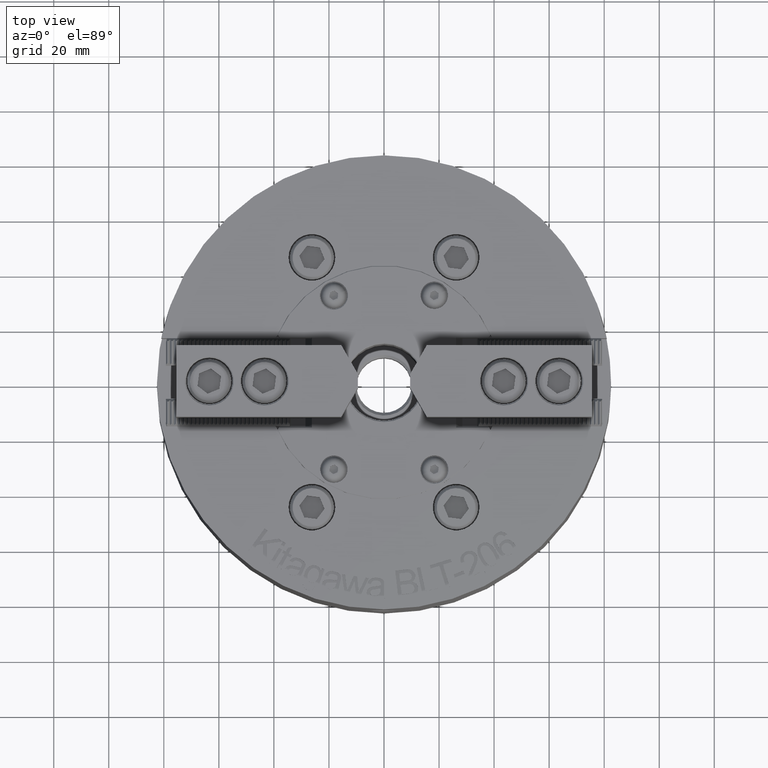
[diagram: clean part render]
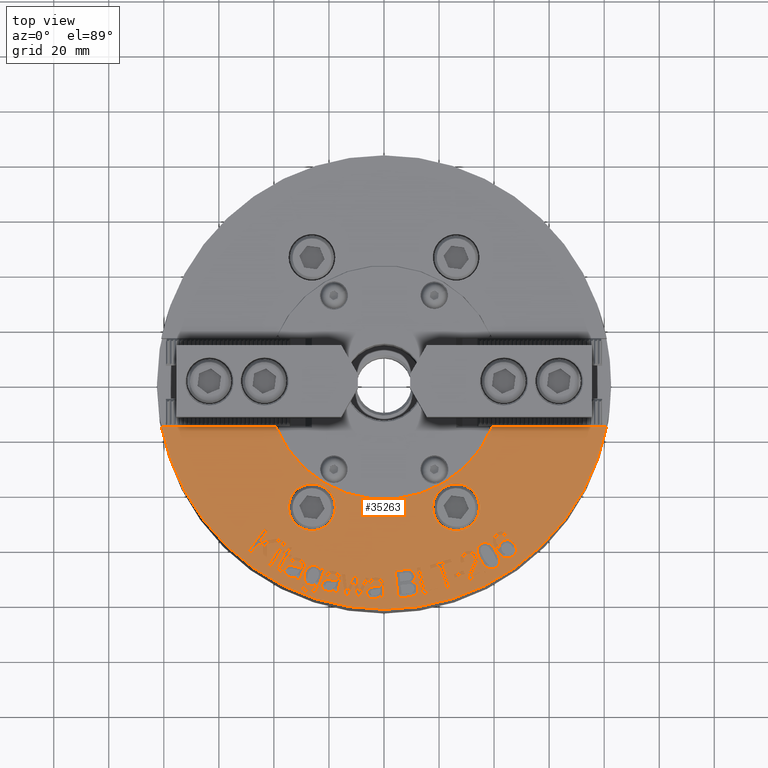
[diagram: same view with one face highlighted and labeled with its STEP entity id]
A machine part, top view. The second image highlights one B-rep face of the part: STEP entity #35263.
In plain terms, the highlighted planar face has unit normal (0, 0, -1).
Its self-contained STEP definition (entity closure, byte-faithful):
#147=ELLIPSE('',#36818,10.9705568422883,4.15728778458331);
#149=ELLIPSE('',#36873,809.389939080856,37.4731148083534);
#153=ELLIPSE('',#36907,10.9705568448729,4.15728778510648);
#155=ELLIPSE('',#36913,238.06076244968,24.3665828417522);
#159=ELLIPSE('',#36921,10.9705568442111,4.15728778499033);
#486=B_SPLINE_CURVE_WITH_KNOTS('',3,(#49036,#49037,#49038,#49039,#49040,
#49041,#49042,#49043,#49044,#49045,#49046,#49047,#49048,#49049),
 .UNSPECIFIED.,.F.,.F.,(4,2,2,2,2,2,4),(0.,0.191418336523221,0.382836673046442,
0.53647507472955,0.690902803641739,0.845982121201856,1.),.UNSPECIFIED.);
#487=B_SPLINE_CURVE_WITH_KNOTS('',3,(#49104,#49105,#49106,#49107,#49108,
#49109,#49110,#49111,#49112,#49113,#49114,#49115,#49116,#49117),
 .UNSPECIFIED.,.F.,.F.,(4,2,2,2,2,2,4),(0.,0.252000019580111,0.405570583659606,
0.559856839511893,0.714143095364185,0.857286454960471,1.),.UNSPECIFIED.);
#490=B_SPLINE_CURVE_WITH_KNOTS('',3,(#49253,#49254,#49255,#49256,#49257,
#49258,#49259,#49260,#49261,#49262,#49263,#49264,#49265,#49266,#49267,#49268,
#49269,#49270,#49271,#49272),.UNSPECIFIED.,.F.,.F.,(4,2,2,2,2,2,2,2,2,4),
(0.,0.155156364325038,0.310711659783489,0.467944101284621,0.625176542785752,
0.705585315800989,0.785994088816229,0.866164122451429,0.932887814761923,
1.),.UNSPECIFIED.);
#491=B_SPLINE_CURVE_WITH_KNOTS('',3,(#49319,#49320,#49321,#49322,#49323,
#49324,#49325,#49326,#49327,#49328,#49329,#49330,#49331,#49332,#49333,#49334,
#49335,#49336),.UNSPECIFIED.,.F.,.F.,(4,2,2,2,2,2,2,2,4),(0.,0.0840802084628492,
0.168160416925701,0.299097122327957,0.430144763204044,0.568432605233506,
0.706213402114856,0.852842507052808,1.),.UNSPECIFIED.);
#503=B_SPLINE_CURVE_WITH_KNOTS('',3,(#49522,#49523,#49524,#49525,#49526,
#49527,#49528,#49529,#49530,#49531),.UNSPECIFIED.,.F.,.F.,(4,2,2,2,4),(0.,
0.161400933076749,0.32305444977334,0.661769083976665,1.),.UNSPECIFIED.);
#504=B_SPLINE_CURVE_WITH_KNOTS('',3,(#49556,#49557,#49558,#49559,#49560,
#49561,#49562,#49563,#49564,#49565,#49566,#49567),.UNSPECIFIED.,.F.,.F.,
(4,2,2,2,2,4),(0.,0.201729813985255,0.402147456711242,0.601740335475394,
0.800182463185055,1.),.UNSPECIFIED.);
#505=B_SPLINE_CURVE_WITH_KNOTS('',3,(#49578,#49579,#49580,#49581),
 .UNSPECIFIED.,.F.,.F.,(4,4),(0.,1.),.UNSPECIFIED.);
#506=B_SPLINE_CURVE_WITH_KNOTS('',3,(#49622,#49623,#49624,#49625,#49626,
#49627,#49628,#49629,#49630,#49631,#49632,#49633),.UNSPECIFIED.,.F.,.F.,
(4,2,2,2,2,4),(0.,0.017399155525998,0.21800118394337,0.490686650061097,
0.745343325030549,1.),.UNSPECIFIED.);
#507=B_SPLINE_CURVE_WITH_KNOTS('',3,(#49652,#49653,#49654,#49655,#49656,
#49657),.UNSPECIFIED.,.F.,.F.,(4,2,4),(0.,0.329346617625047,1.),
 .UNSPECIFIED.);
#508=B_SPLINE_CURVE_WITH_KNOTS('',3,(#49690,#49691,#49692,#49693,#49694,
#49695,#49696,#49697,#49698,#49699,#49700,#49701,#49702,#49703,#49704,#49705),
 .UNSPECIFIED.,.F.,.F.,(4,2,2,2,2,2,2,4),(0.,0.121638770408581,0.243926738064082,
0.445151912354347,0.646377086644608,0.763546175471848,0.881503409927182,
1.),.UNSPECIFIED.);
#511=B_SPLINE_CURVE_WITH_KNOTS('',3,(#49895,#49896,#49897,#49898,#49899,
#49900),.UNSPECIFIED.,.F.,.F.,(4,2,4),(0.,0.752088894191933,1.),
 .UNSPECIFIED.);
#519=B_SPLINE_CURVE_WITH_KNOTS('',3,(#50078,#50079,#50080,#50081,#50082,
#50083,#50084,#50085,#50086,#50087,#50088,#50089,#50090,#50091,#50092,#50093),
 .UNSPECIFIED.,.F.,.F.,(4,2,2,2,2,2,2,4),(0.,0.122552443897326,0.245104887794655,
0.368161177129244,0.51411165982841,0.66021815150368,0.806790713600132,1.),
 .UNSPECIFIED.);
#520=B_SPLINE_CURVE_WITH_KNOTS('',3,(#50124,#50125,#50126,#50127,#50128,
#50129,#50130,#50131,#50132,#50133,#50134,#50135),.UNSPECIFIED.,.F.,.F.,
(4,2,2,2,2,4),(0.,0.298354747322182,0.486147517435052,0.673342336576265,
0.861137430528371,1.),.UNSPECIFIED.);
#528=B_SPLINE_CURVE_WITH_KNOTS('',3,(#50419,#50420,#50421,#50422,#50423,
#50424,#50425,#50426,#50427,#50428,#50429,#50430),.UNSPECIFIED.,.F.,.F.,
(4,2,2,2,2,4),(0.,0.305642871187445,0.470824864071837,0.636006856956226,
0.802203083040521,1.),.UNSPECIFIED.);
#529=B_SPLINE_CURVE_WITH_KNOTS('',3,(#50477,#50478,#50479,#50480,#50481,
#50482,#50483,#50484,#50485,#50486,#50487,#50488,#50489,#50490,#50491,#50492),
 .UNSPECIFIED.,.F.,.F.,(4,2,2,2,2,2,2,4),(0.,0.139502185151219,0.312877105355129,
0.486252025559039,0.605364566157146,0.723849606700873,0.842334647244602,
1.),.UNSPECIFIED.);
#530=B_SPLINE_CURVE_WITH_KNOTS('',3,(#50521,#50522,#50523,#50524,#50525,
#50526,#50527,#50528,#50529,#50530,#50531,#50532),.UNSPECIFIED.,.F.,.F.,
(4,2,2,2,2,4),(0.,0.163294555225847,0.382294890155226,0.619368068258387,
0.856441246361548,1.),.UNSPECIFIED.);
#534=B_SPLINE_CURVE_WITH_KNOTS('',3,(#50632,#50633,#50634,#50635),
 .UNSPECIFIED.,.F.,.F.,(4,4),(0.,1.),.UNSPECIFIED.);
#537=B_SPLINE_CURVE_WITH_KNOTS('',3,(#50666,#50667,#50668,#50669,#50670,
#50671),.UNSPECIFIED.,.F.,.F.,(4,2,4),(0.,0.801064859632143,1.),
 .UNSPECIFIED.);
#538=B_SPLINE_CURVE_WITH_KNOTS('',3,(#50736,#50737,#50738,#50739,#50740,
#50741,#50742,#50743,#50744,#50745,#50746,#50747),.UNSPECIFIED.,.F.,.F.,
(4,2,2,2,2,4),(0.,0.110852159708874,0.293862800737678,0.476873441766491,
0.658173620793267,1.),.UNSPECIFIED.);
#549=B_SPLINE_CURVE_WITH_KNOTS('',3,(#50971,#50972,#50973,#50974,#50975,
#50976,#50977,#50978,#50979,#50980),.UNSPECIFIED.,.F.,.F.,(4,2,2,2,4),(0.,
0.161400933076745,0.323054449773332,0.66176908397665,1.),.UNSPECIFIED.);
#550=B_SPLINE_CURVE_WITH_KNOTS('',3,(#51005,#51006,#51007,#51008,#51009,
#51010,#51011,#51012,#51013,#51014,#51015,#51016),.UNSPECIFIED.,.F.,.F.,
(4,2,2,2,2,4),(0.,0.201729813985251,0.402147456711237,0.601740335475387,
0.800182463185056,1.),.UNSPECIFIED.);
#551=B_SPLINE_CURVE_WITH_KNOTS('',3,(#51027,#51028,#51029,#51030),
 .UNSPECIFIED.,.F.,.F.,(4,4),(0.,1.),.UNSPECIFIED.);
#552=B_SPLINE_CURVE_WITH_KNOTS('',3,(#51071,#51072,#51073,#51074,#51075,
#51076,#51077,#51078,#51079,#51080,#51081,#51082),.UNSPECIFIED.,.F.,.F.,
(4,2,2,2,2,4),(0.,0.0173991555260015,0.218001183943369,0.490686650061096,
0.745343325030548,1.),.UNSPECIFIED.);
#553=B_SPLINE_CURVE_WITH_KNOTS('',3,(#51101,#51102,#51103,#51104,#51105,
#51106),.UNSPECIFIED.,.F.,.F.,(4,2,4),(0.,0.329346617625048,1.),
 .UNSPECIFIED.);
#554=B_SPLINE_CURVE_WITH_KNOTS('',3,(#51139,#51140,#51141,#51142,#51143,
#51144,#51145,#51146,#51147,#51148,#51149,#51150,#51151,#51152,#51153,#51154),
 .UNSPECIFIED.,.F.,.F.,(4,2,2,2,2,2,2,4),(0.,0.121638770408575,0.243926738064072,
0.445151912354334,0.646377086644595,0.763546175471837,0.881503409927173,
1.),.UNSPECIFIED.);
#562=B_SPLINE_CURVE_WITH_KNOTS('',3,(#51380,#51381,#51382,#51383,#51384,
#51385,#51386,#51387,#51388,#51389,#51390,#51391,#51392,#51393,#51394,#51395,
#51396,#51397,#51398,#51399,#51400,#51401,#51402,#51403,#51404,#51405),
 .UNSPECIFIED.,.F.,.F.,(4,2,2,2,2,2,2,2,2,2,2,2,4),(0.,0.0546908108123308,
0.109248937950565,0.204651127481903,0.299841767524093,0.362366450661724,
0.424654636421198,0.486942822180669,0.59341835339344,0.699685368120426,
0.818704424614651,0.922590067255491,1.),.UNSPECIFIED.);
#563=B_SPLINE_CURVE_WITH_KNOTS('',3,(#51430,#51431,#51432,#51433,#51434,
#51435,#51436,#51437,#51438,#51439),.UNSPECIFIED.,.F.,.F.,(4,2,2,2,4),(0.,
0.256866183763508,0.463711058057282,0.73131335731784,1.),.UNSPECIFIED.);
#564=B_SPLINE_CURVE_WITH_KNOTS('',3,(#51450,#51451,#51452,#51453),
 .UNSPECIFIED.,.F.,.F.,(4,4),(0.,1.),.UNSPECIFIED.);
#575=B_SPLINE_CURVE_WITH_KNOTS('',3,(#51651,#51652,#51653,#51654,#51655,
#51656,#51657,#51658,#51659,#51660),.UNSPECIFIED.,.F.,.F.,(4,2,2,2,4),(0.,
0.16140093307675,0.323054449773335,0.661769083976651,1.),.UNSPECIFIED.);
#576=B_SPLINE_CURVE_WITH_KNOTS('',3,(#51685,#51686,#51687,#51688,#51689,
#51690,#51691,#51692,#51693,#51694,#51695,#51696),.UNSPECIFIED.,.F.,.F.,
(4,2,2,2,2,4),(0.,0.201729813985255,0.40214745671124,0.601740335475388,
0.800182463185049,1.),.UNSPECIFIED.);
#577=B_SPLINE_CURVE_WITH_KNOTS('',3,(#51707,#51708,#51709,#51710),
 .UNSPECIFIED.,.F.,.F.,(4,4),(0.,1.),.UNSPECIFIED.);
#578=B_SPLINE_CURVE_WITH_KNOTS('',3,(#51751,#51752,#51753,#51754,#51755,
#51756,#51757,#51758,#51759,#51760,#51761,#51762),.UNSPECIFIED.,.F.,.F.,
(4,2,2,2,2,4),(0.,0.0173991555259939,0.218001183943366,0.490686650061102,
0.745343325030557,1.),.UNSPECIFIED.);
#579=B_SPLINE_CURVE_WITH_KNOTS('',3,(#51781,#51782,#51783,#51784,#51785,
#51786),.UNSPECIFIED.,.F.,.F.,(4,2,4),(0.,0.329346617625044,1.),
 .UNSPECIFIED.);
#580=B_SPLINE_CURVE_WITH_KNOTS('',3,(#51819,#51820,#51821,#51822,#51823,
#51824,#51825,#51826,#51827,#51828,#51829,#51830,#51831,#51832,#51833,#51834),
 .UNSPECIFIED.,.F.,.F.,(4,2,2,2,2,2,2,4),(0.,0.121638770408577,0.243926738064073,
0.445151912354336,0.646377086644599,0.763546175471839,0.881503409927177,
1.),.UNSPECIFIED.);
#963=CIRCLE('',#36793,42.5);
#967=CIRCLE('',#36807,2.18638356524481);
#970=CIRCLE('',#36878,0.50663534801351);
#971=CIRCLE('',#36890,4.07530078928122);
#992=CIRCLE('',#36967,8.5);
#997=CIRCLE('',#36975,8.5);
#1018=CIRCLE('',#37012,82.5);
#2550=ORIENTED_EDGE('',*,*,#12410,.T.);
#2551=ORIENTED_EDGE('',*,*,#12408,.T.);
#2552=ORIENTED_EDGE('',*,*,#12406,.T.);
#2553=ORIENTED_EDGE('',*,*,#12401,.T.);
#2554=ORIENTED_EDGE('',*,*,#12470,.T.);
#2555=ORIENTED_EDGE('',*,*,#12468,.T.);
#2556=ORIENTED_EDGE('',*,*,#12466,.T.);
#2557=ORIENTED_EDGE('',*,*,#12464,.T.);
#2558=ORIENTED_EDGE('',*,*,#12462,.T.);
#2559=ORIENTED_EDGE('',*,*,#12460,.T.);
#2560=ORIENTED_EDGE('',*,*,#12458,.T.);
#2561=ORIENTED_EDGE('',*,*,#12456,.T.);
#2562=ORIENTED_EDGE('',*,*,#12453,.T.);
#2563=ORIENTED_EDGE('',*,*,#12502,.T.);
#2564=ORIENTED_EDGE('',*,*,#12500,.T.);
#2565=ORIENTED_EDGE('',*,*,#12498,.T.);
#2566=ORIENTED_EDGE('',*,*,#12495,.T.);
#2567=ORIENTED_EDGE('',*,*,#12559,.T.);
#2568=ORIENTED_EDGE('',*,*,#12556,.T.);
#2569=ORIENTED_EDGE('',*,*,#12607,.T.);
#2570=ORIENTED_EDGE('',*,*,#12605,.T.);
#2571=ORIENTED_EDGE('',*,*,#12603,.T.);
#2572=ORIENTED_EDGE('',*,*,#12600,.T.);
#2573=ORIENTED_EDGE('',*,*,#12679,.T.);
#2574=ORIENTED_EDGE('',*,*,#12677,.T.);
#2575=ORIENTED_EDGE('',*,*,#12675,.T.);
#2576=ORIENTED_EDGE('',*,*,#12673,.T.);
#2577=ORIENTED_EDGE('',*,*,#12671,.T.);
#2578=ORIENTED_EDGE('',*,*,#12669,.T.);
#2579=ORIENTED_EDGE('',*,*,#12667,.T.);
#2580=ORIENTED_EDGE('',*,*,#12665,.T.);
#2581=ORIENTED_EDGE('',*,*,#12663,.T.);
#2582=ORIENTED_EDGE('',*,*,#12661,.T.);
#2583=ORIENTED_EDGE('',*,*,#12659,.T.);
#2584=ORIENTED_EDGE('',*,*,#12657,.T.);
#2585=ORIENTED_EDGE('',*,*,#12655,.T.);
#2586=ORIENTED_EDGE('',*,*,#12653,.T.);
#2587=ORIENTED_EDGE('',*,*,#12650,.T.);
#2588=ORIENTED_EDGE('',*,*,#12740,.T.);
#2589=ORIENTED_EDGE('',*,*,#12738,.T.);
#2590=ORIENTED_EDGE('',*,*,#12736,.T.);
#2591=ORIENTED_EDGE('',*,*,#12734,.T.);
#2592=ORIENTED_EDGE('',*,*,#12732,.T.);
#2593=ORIENTED_EDGE('',*,*,#12730,.T.);
#2594=ORIENTED_EDGE('',*,*,#12728,.T.);
#2595=ORIENTED_EDGE('',*,*,#12726,.T.);
#2596=ORIENTED_EDGE('',*,*,#12723,.T.);
#2597=ORIENTED_EDGE('',*,*,#12800,.T.);
#2598=ORIENTED_EDGE('',*,*,#12798,.T.);
#2599=ORIENTED_EDGE('',*,*,#12796,.T.);
#2600=ORIENTED_EDGE('',*,*,#12794,.T.);
#2601=ORIENTED_EDGE('',*,*,#12792,.T.);
#2602=ORIENTED_EDGE('',*,*,#12790,.T.);
#2603=ORIENTED_EDGE('',*,*,#12788,.T.);
#2604=ORIENTED_EDGE('',*,*,#12786,.T.);
#2605=ORIENTED_EDGE('',*,*,#12783,.T.);
#2606=ORIENTED_EDGE('',*,*,#12893,.T.);
#2607=ORIENTED_EDGE('',*,*,#12298,.T.);
#2608=ORIENTED_EDGE('',*,*,#12894,.T.);
#2609=ORIENTED_EDGE('',*,*,#12377,.F.);
#2610=ORIENTED_EDGE('',*,*,#12895,.T.);
#2611=ORIENTED_EDGE('',*,*,#12867,.T.);
#2612=ORIENTED_EDGE('',*,*,#12839,.T.);
#2613=ORIENTED_EDGE('',*,*,#12844,.T.);
#2614=ORIENTED_EDGE('',*,*,#12814,.T.);
#2615=ORIENTED_EDGE('',*,*,#12812,.T.);
#2616=ORIENTED_EDGE('',*,*,#12810,.T.);
#2617=ORIENTED_EDGE('',*,*,#12807,.T.);
#2618=ORIENTED_EDGE('',*,*,#12763,.T.);
#2619=ORIENTED_EDGE('',*,*,#12761,.T.);
#2620=ORIENTED_EDGE('',*,*,#12759,.T.);
#2621=ORIENTED_EDGE('',*,*,#12757,.T.);
#2622=ORIENTED_EDGE('',*,*,#12754,.T.);
#2623=ORIENTED_EDGE('',*,*,#12703,.T.);
#2624=ORIENTED_EDGE('',*,*,#12701,.T.);
#2625=ORIENTED_EDGE('',*,*,#12699,.T.);
#2626=ORIENTED_EDGE('',*,*,#12697,.T.);
#2627=ORIENTED_EDGE('',*,*,#12695,.T.);
#2628=ORIENTED_EDGE('',*,*,#12693,.T.);
#2629=ORIENTED_EDGE('',*,*,#12691,.T.);
#2630=ORIENTED_EDGE('',*,*,#12688,.T.);
#2631=ORIENTED_EDGE('',*,*,#12634,.T.);
#2632=ORIENTED_EDGE('',*,*,#12632,.T.);
#2633=ORIENTED_EDGE('',*,*,#12630,.T.);
#2634=ORIENTED_EDGE('',*,*,#12628,.T.);
#2635=ORIENTED_EDGE('',*,*,#12626,.T.);
#2636=ORIENTED_EDGE('',*,*,#12624,.T.);
#2637=ORIENTED_EDGE('',*,*,#12621,.T.);
#2638=ORIENTED_EDGE('',*,*,#12595,.T.);
#2639=ORIENTED_EDGE('',*,*,#12593,.T.);
#2640=ORIENTED_EDGE('',*,*,#12591,.T.);
#2641=ORIENTED_EDGE('',*,*,#12589,.T.);
#2642=ORIENTED_EDGE('',*,*,#12587,.T.);
#2643=ORIENTED_EDGE('',*,*,#12585,.T.);
#2644=ORIENTED_EDGE('',*,*,#12583,.T.);
#2645=ORIENTED_EDGE('',*,*,#12581,.T.);
#2646=ORIENTED_EDGE('',*,*,#12579,.T.);
#2647=ORIENTED_EDGE('',*,*,#12577,.T.);
#2648=ORIENTED_EDGE('',*,*,#12575,.T.);
#2649=ORIENTED_EDGE('',*,*,#12572,.T.);
#2650=ORIENTED_EDGE('',*,*,#12547,.T.);
#2651=ORIENTED_EDGE('',*,*,#12545,.T.);
#2652=ORIENTED_EDGE('',*,*,#12543,.T.);
#2653=ORIENTED_EDGE('',*,*,#12541,.T.);
#2654=ORIENTED_EDGE('',*,*,#12539,.T.);
#2655=ORIENTED_EDGE('',*,*,#12537,.T.);
#2656=ORIENTED_EDGE('',*,*,#12535,.T.);
#2657=ORIENTED_EDGE('',*,*,#12533,.T.);
#2658=ORIENTED_EDGE('',*,*,#12531,.T.);
#2659=ORIENTED_EDGE('',*,*,#12529,.T.);
#2660=ORIENTED_EDGE('',*,*,#12527,.T.);
#2661=ORIENTED_EDGE('',*,*,#12525,.T.);
#2662=ORIENTED_EDGE('',*,*,#12523,.T.);
#2663=ORIENTED_EDGE('',*,*,#12521,.T.);
#2664=ORIENTED_EDGE('',*,*,#12518,.T.);
#2665=ORIENTED_EDGE('',*,*,#12490,.T.);
#2666=ORIENTED_EDGE('',*,*,#12488,.T.);
#2667=ORIENTED_EDGE('',*,*,#12486,.T.);
#2668=ORIENTED_EDGE('',*,*,#12484,.T.);
#2669=ORIENTED_EDGE('',*,*,#12482,.T.);
#2670=ORIENTED_EDGE('',*,*,#12479,.T.);
#2671=ORIENTED_EDGE('',*,*,#12433,.T.);
#2672=ORIENTED_EDGE('',*,*,#12431,.T.);
#2673=ORIENTED_EDGE('',*,*,#12429,.T.);
#2674=ORIENTED_EDGE('',*,*,#12427,.T.);
#2675=ORIENTED_EDGE('',*,*,#12425,.T.);
#2676=ORIENTED_EDGE('',*,*,#12423,.T.);
#2677=ORIENTED_EDGE('',*,*,#12420,.T.);
#12298=EDGE_CURVE('',#17666,#17665,#21162,.T.);
#12377=EDGE_CURVE('',#17732,#17733,#963,.T.);
#12401=EDGE_CURVE('',#17754,#17755,#486,.T.);
#12406=EDGE_CURVE('',#17756,#17754,#487,.T.);
#12408=EDGE_CURVE('',#17757,#17756,#21239,.T.);
#12410=EDGE_CURVE('',#17755,#17757,#21241,.T.);
#12420=EDGE_CURVE('',#17765,#17766,#490,.T.);
#12423=EDGE_CURVE('',#17767,#17765,#21250,.T.);
#12425=EDGE_CURVE('',#17768,#17767,#491,.T.);
#12427=EDGE_CURVE('',#17769,#17768,#967,.T.);
#12429=EDGE_CURVE('',#17770,#17769,#21253,.T.);
#12431=EDGE_CURVE('',#17771,#17770,#21255,.T.);
#12433=EDGE_CURVE('',#17766,#17771,#21257,.T.);
#12453=EDGE_CURVE('',#17789,#17790,#21264,.T.);
#12456=EDGE_CURVE('',#17791,#17789,#503,.T.);
#12458=EDGE_CURVE('',#17792,#17791,#504,.T.);
#12460=EDGE_CURVE('',#17793,#17792,#505,.T.);
#12462=EDGE_CURVE('',#17794,#17793,#21270,.T.);
#12464=EDGE_CURVE('',#17795,#17794,#506,.T.);
#12466=EDGE_CURVE('',#17796,#17795,#507,.T.);
#12468=EDGE_CURVE('',#17797,#17796,#508,.T.);
#12470=EDGE_CURVE('',#17790,#17797,#147,.T.);
#12479=EDGE_CURVE('',#17804,#17805,#21283,.T.);
#12482=EDGE_CURVE('',#17806,#17804,#21286,.T.);
#12484=EDGE_CURVE('',#17807,#17806,#21288,.T.);
#12486=EDGE_CURVE('',#17808,#17807,#21290,.T.);
#12488=EDGE_CURVE('',#17809,#17808,#21292,.T.);
#12490=EDGE_CURVE('',#17805,#17809,#21294,.T.);
#12495=EDGE_CURVE('',#17814,#17815,#21299,.T.);
#12498=EDGE_CURVE('',#17816,#17814,#21302,.T.);
#12500=EDGE_CURVE('',#17817,#17816,#21304,.T.);
#12502=EDGE_CURVE('',#17815,#17817,#21306,.T.);
#12518=EDGE_CURVE('',#17833,#17834,#21321,.T.);
#12521=EDGE_CURVE('',#17835,#17833,#21324,.T.);
#12523=EDGE_CURVE('',#17836,#17835,#21326,.T.);
#12525=EDGE_CURVE('',#17837,#17836,#21328,.T.);
#12527=EDGE_CURVE('',#17838,#17837,#21330,.T.);
#12529=EDGE_CURVE('',#17839,#17838,#21332,.T.);
#12531=EDGE_CURVE('',#17840,#17839,#21334,.T.);
#12533=EDGE_CURVE('',#17841,#17840,#511,.T.);
#12535=EDGE_CURVE('',#17842,#17841,#21336,.T.);
#12537=EDGE_CURVE('',#17843,#17842,#21338,.T.);
#12539=EDGE_CURVE('',#17844,#17843,#21339,.T.);
#12541=EDGE_CURVE('',#17845,#17844,#21341,.T.);
#12543=EDGE_CURVE('',#17846,#17845,#21343,.T.);
#12545=EDGE_CURVE('',#17847,#17846,#21345,.T.);
#12547=EDGE_CURVE('',#17834,#17847,#21347,.T.);
#12556=EDGE_CURVE('',#17854,#17855,#519,.T.);
#12559=EDGE_CURVE('',#17855,#17854,#520,.T.);
#12572=EDGE_CURVE('',#17868,#17869,#21364,.T.);
#12575=EDGE_CURVE('',#17870,#17868,#21367,.T.);
#12577=EDGE_CURVE('',#17871,#17870,#21369,.T.);
#12579=EDGE_CURVE('',#17872,#17871,#21371,.T.);
#12581=EDGE_CURVE('',#17873,#17872,#21373,.T.);
#12583=EDGE_CURVE('',#17874,#17873,#21375,.T.);
#12585=EDGE_CURVE('',#17875,#17874,#21377,.T.);
#12587=EDGE_CURVE('',#17876,#17875,#21379,.T.);
#12589=EDGE_CURVE('',#17877,#17876,#21381,.T.);
#12591=EDGE_CURVE('',#17878,#17877,#21383,.T.);
#12593=EDGE_CURVE('',#17879,#17878,#21385,.T.);
#12595=EDGE_CURVE('',#17869,#17879,#21387,.T.);
#12600=EDGE_CURVE('',#17884,#17885,#21392,.T.);
#12603=EDGE_CURVE('',#17886,#17884,#21395,.T.);
#12605=EDGE_CURVE('',#17887,#17886,#21397,.T.);
#12607=EDGE_CURVE('',#17885,#17887,#21399,.T.);
#12621=EDGE_CURVE('',#17899,#17900,#528,.T.);
#12624=EDGE_CURVE('',#17901,#17899,#21407,.T.);
#12626=EDGE_CURVE('',#17902,#17901,#21409,.T.);
#12628=EDGE_CURVE('',#17903,#17902,#529,.T.);
#12630=EDGE_CURVE('',#17904,#17903,#530,.T.);
#12632=EDGE_CURVE('',#17905,#17904,#21413,.T.);
#12634=EDGE_CURVE('',#17900,#17905,#149,.T.);
#12650=EDGE_CURVE('',#17921,#17922,#534,.T.);
#12653=EDGE_CURVE('',#17923,#17921,#970,.T.);
#12655=EDGE_CURVE('',#17924,#17923,#537,.T.);
#12657=EDGE_CURVE('',#17925,#17924,#21427,.T.);
#12659=EDGE_CURVE('',#17926,#17925,#21429,.T.);
#12661=EDGE_CURVE('',#17927,#17926,#21431,.T.);
#12663=EDGE_CURVE('',#17928,#17927,#21433,.T.);
#12665=EDGE_CURVE('',#17929,#17928,#21435,.T.);
#12667=EDGE_CURVE('',#17930,#17929,#21437,.T.);
#12669=EDGE_CURVE('',#17931,#17930,#21439,.T.);
#12671=EDGE_CURVE('',#17932,#17931,#21441,.T.);
#12673=EDGE_CURVE('',#17933,#17932,#21443,.T.);
#12675=EDGE_CURVE('',#17934,#17933,#538,.T.);
#12677=EDGE_CURVE('',#17935,#17934,#21446,.T.);
#12679=EDGE_CURVE('',#17922,#17935,#971,.T.);
#12688=EDGE_CURVE('',#17944,#17945,#21456,.T.);
#12691=EDGE_CURVE('',#17946,#17944,#21459,.T.);
#12693=EDGE_CURVE('',#17947,#17946,#21461,.T.);
#12695=EDGE_CURVE('',#17948,#17947,#21463,.T.);
#12697=EDGE_CURVE('',#17949,#17948,#21465,.T.);
#12699=EDGE_CURVE('',#17950,#17949,#21467,.T.);
#12701=EDGE_CURVE('',#17951,#17950,#21469,.T.);
#12703=EDGE_CURVE('',#17945,#17951,#21471,.T.);
#12723=EDGE_CURVE('',#17969,#17970,#21478,.T.);
#12726=EDGE_CURVE('',#17971,#17969,#549,.T.);
#12728=EDGE_CURVE('',#17972,#17971,#550,.T.);
#12730=EDGE_CURVE('',#17973,#17972,#551,.T.);
#12732=EDGE_CURVE('',#17974,#17973,#21484,.T.);
#12734=EDGE_CURVE('',#17975,#17974,#552,.T.);
#12736=EDGE_CURVE('',#17976,#17975,#553,.T.);
#12738=EDGE_CURVE('',#17977,#17976,#554,.T.);
#12740=EDGE_CURVE('',#17970,#17977,#153,.T.);
#12754=EDGE_CURVE('',#17987,#17988,#562,.T.);
#12757=EDGE_CURVE('',#17989,#17987,#563,.T.);
#12759=EDGE_CURVE('',#17990,#17989,#564,.T.);
#12761=EDGE_CURVE('',#17991,#17990,#21498,.T.);
#12763=EDGE_CURVE('',#17988,#17991,#155,.T.);
#12783=EDGE_CURVE('',#18009,#18010,#21506,.T.);
#12786=EDGE_CURVE('',#18011,#18009,#575,.T.);
#12788=EDGE_CURVE('',#18012,#18011,#576,.T.);
#12790=EDGE_CURVE('',#18013,#18012,#577,.T.);
#12792=EDGE_CURVE('',#18014,#18013,#21512,.T.);
#12794=EDGE_CURVE('',#18015,#18014,#578,.T.);
#12796=EDGE_CURVE('',#18016,#18015,#579,.T.);
#12798=EDGE_CURVE('',#18017,#18016,#580,.T.);
#12800=EDGE_CURVE('',#18010,#18017,#159,.T.);
#12807=EDGE_CURVE('',#18022,#18023,#21523,.T.);
#12810=EDGE_CURVE('',#18024,#18022,#21526,.T.);
#12812=EDGE_CURVE('',#18025,#18024,#21528,.T.);
#12814=EDGE_CURVE('',#18023,#18025,#21530,.T.);
#12839=EDGE_CURVE('',#18056,#18056,#992,.T.);
#12844=EDGE_CURVE('',#18061,#18061,#997,.T.);
#12867=EDGE_CURVE('',#18076,#18081,#21547,.T.);
#12893=EDGE_CURVE('',#18081,#17666,#1018,.T.);
#12894=EDGE_CURVE('',#17665,#17733,#21559,.T.);
#12895=EDGE_CURVE('',#17732,#18076,#21560,.T.);
#17665=VERTEX_POINT('',#48670);
#17666=VERTEX_POINT('',#48672);
#17732=VERTEX_POINT('',#48829);
#17733=VERTEX_POINT('',#48831);
#17754=VERTEX_POINT('',#49050);
#17755=VERTEX_POINT('',#49051);
#17756=VERTEX_POINT('',#49118);
#17757=VERTEX_POINT('',#49122);
#17765=VERTEX_POINT('',#49273);
#17766=VERTEX_POINT('',#49274);
#17767=VERTEX_POINT('',#49279);
#17768=VERTEX_POINT('',#49337);
#17769=VERTEX_POINT('',#49344);
#17770=VERTEX_POINT('',#49348);
#17771=VERTEX_POINT('',#49352);
#17789=VERTEX_POINT('',#49494);
#17790=VERTEX_POINT('',#49495);
#17791=VERTEX_POINT('',#49532);
#17792=VERTEX_POINT('',#49568);
#17793=VERTEX_POINT('',#49582);
#17794=VERTEX_POINT('',#49586);
#17795=VERTEX_POINT('',#49634);
#17796=VERTEX_POINT('',#49658);
#17797=VERTEX_POINT('',#49706);
#17804=VERTEX_POINT('',#49771);
#17805=VERTEX_POINT('',#49772);
#17806=VERTEX_POINT('',#49777);
#17807=VERTEX_POINT('',#49781);
#17808=VERTEX_POINT('',#49785);
#17809=VERTEX_POINT('',#49789);
#17814=VERTEX_POINT('',#49804);
#17815=VERTEX_POINT('',#49805);
#17816=VERTEX_POINT('',#49810);
#17817=VERTEX_POINT('',#49814);
#17833=VERTEX_POINT('',#49856);
#17834=VERTEX_POINT('',#49857);
#17835=VERTEX_POINT('',#49862);
#17836=VERTEX_POINT('',#49866);
#17837=VERTEX_POINT('',#49870);
#17838=VERTEX_POINT('',#49874);
#17839=VERTEX_POINT('',#49878);
#17840=VERTEX_POINT('',#49882);
#17841=VERTEX_POINT('',#49901);
#17842=VERTEX_POINT('',#49905);
#17843=VERTEX_POINT('',#49909);
#17844=VERTEX_POINT('',#49916);
#17845=VERTEX_POINT('',#49920);
#17846=VERTEX_POINT('',#49924);
#17847=VERTEX_POINT('',#49928);
#17854=VERTEX_POINT('',#50094);
#17855=VERTEX_POINT('',#50095);
#17868=VERTEX_POINT('',#50195);
#17869=VERTEX_POINT('',#50196);
#17870=VERTEX_POINT('',#50201);
#17871=VERTEX_POINT('',#50205);
#17872=VERTEX_POINT('',#50209);
#17873=VERTEX_POINT('',#50213);
#17874=VERTEX_POINT('',#50217);
#17875=VERTEX_POINT('',#50221);
#17876=VERTEX_POINT('',#50225);
#17877=VERTEX_POINT('',#50229);
#17878=VERTEX_POINT('',#50233);
#17879=VERTEX_POINT('',#50237);
#17884=VERTEX_POINT('',#50252);
#17885=VERTEX_POINT('',#50253);
#17886=VERTEX_POINT('',#50258);
#17887=VERTEX_POINT('',#50262);
#17899=VERTEX_POINT('',#50431);
#17900=VERTEX_POINT('',#50432);
#17901=VERTEX_POINT('',#50437);
#17902=VERTEX_POINT('',#50441);
#17903=VERTEX_POINT('',#50493);
#17904=VERTEX_POINT('',#50533);
#17905=VERTEX_POINT('',#50537);
#17921=VERTEX_POINT('',#50636);
#17922=VERTEX_POINT('',#50637);
#17923=VERTEX_POINT('',#50648);
#17924=VERTEX_POINT('',#50672);
#17925=VERTEX_POINT('',#50676);
#17926=VERTEX_POINT('',#50680);
#17927=VERTEX_POINT('',#50684);
#17928=VERTEX_POINT('',#50688);
#17929=VERTEX_POINT('',#50692);
#17930=VERTEX_POINT('',#50696);
#17931=VERTEX_POINT('',#50700);
#17932=VERTEX_POINT('',#50704);
#17933=VERTEX_POINT('',#50708);
#17934=VERTEX_POINT('',#50748);
#17935=VERTEX_POINT('',#50752);
#17944=VERTEX_POINT('',#50775);
#17945=VERTEX_POINT('',#50776);
#17946=VERTEX_POINT('',#50781);
#17947=VERTEX_POINT('',#50785);
#17948=VERTEX_POINT('',#50789);
#17949=VERTEX_POINT('',#50793);
#17950=VERTEX_POINT('',#50797);
#17951=VERTEX_POINT('',#50801);
#17969=VERTEX_POINT('',#50943);
#17970=VERTEX_POINT('',#50944);
#17971=VERTEX_POINT('',#50981);
#17972=VERTEX_POINT('',#51017);
#17973=VERTEX_POINT('',#51031);
#17974=VERTEX_POINT('',#51035);
#17975=VERTEX_POINT('',#51083);
#17976=VERTEX_POINT('',#51107);
#17977=VERTEX_POINT('',#51155);
#17987=VERTEX_POINT('',#51406);
#17988=VERTEX_POINT('',#51407);
#17989=VERTEX_POINT('',#51440);
#17990=VERTEX_POINT('',#51454);
#17991=VERTEX_POINT('',#51458);
#18009=VERTEX_POINT('',#51623);
#18010=VERTEX_POINT('',#51624);
#18011=VERTEX_POINT('',#51661);
#18012=VERTEX_POINT('',#51697);
#18013=VERTEX_POINT('',#51711);
#18014=VERTEX_POINT('',#51715);
#18015=VERTEX_POINT('',#51763);
#18016=VERTEX_POINT('',#51787);
#18017=VERTEX_POINT('',#51835);
#18022=VERTEX_POINT('',#51896);
#18023=VERTEX_POINT('',#51897);
#18024=VERTEX_POINT('',#51902);
#18025=VERTEX_POINT('',#51906);
#18056=VERTEX_POINT('',#52280);
#18061=VERTEX_POINT('',#52293);
#18076=VERTEX_POINT('',#52332);
#18081=VERTEX_POINT('',#52341);
#21162=LINE('',#48671,#25557);
#21239=LINE('',#49121,#25634);
#21241=LINE('',#49125,#25636);
#21250=LINE('',#49278,#25645);
#21253=LINE('',#49347,#25648);
#21255=LINE('',#49351,#25650);
#21257=LINE('',#49355,#25652);
#21264=LINE('',#49493,#25659);
#21270=LINE('',#49585,#25665);
#21283=LINE('',#49770,#25678);
#21286=LINE('',#49776,#25681);
#21288=LINE('',#49780,#25683);
#21290=LINE('',#49784,#25685);
#21292=LINE('',#49788,#25687);
#21294=LINE('',#49792,#25689);
#21299=LINE('',#49803,#25694);
#21302=LINE('',#49809,#25697);
#21304=LINE('',#49813,#25699);
#21306=LINE('',#49817,#25701);
#21321=LINE('',#49855,#25716);
#21324=LINE('',#49861,#25719);
#21326=LINE('',#49865,#25721);
#21328=LINE('',#49869,#25723);
#21330=LINE('',#49873,#25725);
#21332=LINE('',#49877,#25727);
#21334=LINE('',#49881,#25729);
#21336=LINE('',#49904,#25731);
#21338=LINE('',#49908,#25733);
#21339=LINE('',#49915,#25734);
#21341=LINE('',#49919,#25736);
#21343=LINE('',#49923,#25738);
#21345=LINE('',#49927,#25740);
#21347=LINE('',#49931,#25742);
#21364=LINE('',#50194,#25759);
#21367=LINE('',#50200,#25762);
#21369=LINE('',#50204,#25764);
#21371=LINE('',#50208,#25766);
#21373=LINE('',#50212,#25768);
#21375=LINE('',#50216,#25770);
#21377=LINE('',#50220,#25772);
#21379=LINE('',#50224,#25774);
#21381=LINE('',#50228,#25776);
#21383=LINE('',#50232,#25778);
#21385=LINE('',#50236,#25780);
#21387=LINE('',#50240,#25782);
#21392=LINE('',#50251,#25787);
#21395=LINE('',#50257,#25790);
#21397=LINE('',#50261,#25792);
#21399=LINE('',#50265,#25794);
#21407=LINE('',#50436,#25802);
#21409=LINE('',#50440,#25804);
#21413=LINE('',#50536,#25808);
#21427=LINE('',#50675,#25822);
#21429=LINE('',#50679,#25824);
#21431=LINE('',#50683,#25826);
#21433=LINE('',#50687,#25828);
#21435=LINE('',#50691,#25830);
#21437=LINE('',#50695,#25832);
#21439=LINE('',#50699,#25834);
#21441=LINE('',#50703,#25836);
#21443=LINE('',#50707,#25838);
#21446=LINE('',#50751,#25841);
#21456=LINE('',#50774,#25851);
#21459=LINE('',#50780,#25854);
#21461=LINE('',#50784,#25856);
#21463=LINE('',#50788,#25858);
#21465=LINE('',#50792,#25860);
#21467=LINE('',#50796,#25862);
#21469=LINE('',#50800,#25864);
#21471=LINE('',#50804,#25866);
#21478=LINE('',#50942,#25873);
#21484=LINE('',#51034,#25879);
#21498=LINE('',#51457,#25893);
#21506=LINE('',#51622,#25901);
#21512=LINE('',#51714,#25907);
#21523=LINE('',#51895,#25918);
#21526=LINE('',#51901,#25921);
#21528=LINE('',#51905,#25923);
#21530=LINE('',#51909,#25925);
#21547=LINE('',#52342,#25942);
#21559=LINE('',#52393,#25954);
#21560=LINE('',#52394,#25955);
#25557=VECTOR('',#39285,1000.);
#25634=VECTOR('',#39438,1000.);
#25636=VECTOR('',#39442,1000.);
#25645=VECTOR('',#39461,1000.);
#25648=VECTOR('',#39470,1000.);
#25650=VECTOR('',#39474,1000.);
#25652=VECTOR('',#39478,1000.);
#25659=VECTOR('',#39497,1000.);
#25665=VECTOR('',#39505,1000.);
#25678=VECTOR('',#39526,1000.);
#25681=VECTOR('',#39531,1000.);
#25683=VECTOR('',#39535,1000.);
#25685=VECTOR('',#39539,1000.);
#25687=VECTOR('',#39543,1000.);
#25689=VECTOR('',#39547,1000.);
#25694=VECTOR('',#39556,1000.);
#25697=VECTOR('',#39561,1000.);
#25699=VECTOR('',#39565,1000.);
#25701=VECTOR('',#39569,1000.);
#25716=VECTOR('',#39588,1000.);
#25719=VECTOR('',#39593,1000.);
#25721=VECTOR('',#39597,1000.);
#25723=VECTOR('',#39601,1000.);
#25725=VECTOR('',#39605,1000.);
#25727=VECTOR('',#39609,1000.);
#25729=VECTOR('',#39613,1000.);
#25731=VECTOR('',#39617,1000.);
#25733=VECTOR('',#39621,1000.);
#25734=VECTOR('',#39624,1000.);
#25736=VECTOR('',#39628,1000.);
#25738=VECTOR('',#39632,1000.);
#25740=VECTOR('',#39636,1000.);
#25742=VECTOR('',#39640,1000.);
#25759=VECTOR('',#39665,1000.);
#25762=VECTOR('',#39670,1000.);
#25764=VECTOR('',#39674,1000.);
#25766=VECTOR('',#39678,1000.);
#25768=VECTOR('',#39682,1000.);
#25770=VECTOR('',#39686,1000.);
#25772=VECTOR('',#39690,1000.);
#25774=VECTOR('',#39694,1000.);
#25776=VECTOR('',#39698,1000.);
#25778=VECTOR('',#39702,1000.);
#25780=VECTOR('',#39706,1000.);
#25782=VECTOR('',#39710,1000.);
#25787=VECTOR('',#39719,1000.);
#25790=VECTOR('',#39724,1000.);
#25792=VECTOR('',#39728,1000.);
#25794=VECTOR('',#39732,1000.);
#25802=VECTOR('',#39748,1000.);
#25804=VECTOR('',#39752,1000.);
#25808=VECTOR('',#39758,1000.);
#25822=VECTOR('',#39786,1000.);
#25824=VECTOR('',#39790,1000.);
#25826=VECTOR('',#39794,1000.);
#25828=VECTOR('',#39798,1000.);
#25830=VECTOR('',#39802,1000.);
#25832=VECTOR('',#39806,1000.);
#25834=VECTOR('',#39810,1000.);
#25836=VECTOR('',#39814,1000.);
#25838=VECTOR('',#39818,1000.);
#25841=VECTOR('',#39823,1000.);
#25851=VECTOR('',#39841,1000.);
#25854=VECTOR('',#39846,1000.);
#25856=VECTOR('',#39850,1000.);
#25858=VECTOR('',#39854,1000.);
#25860=VECTOR('',#39858,1000.);
#25862=VECTOR('',#39862,1000.);
#25864=VECTOR('',#39866,1000.);
#25866=VECTOR('',#39870,1000.);
#25873=VECTOR('',#39889,1000.);
#25879=VECTOR('',#39897,1000.);
#25893=VECTOR('',#39923,1000.);
#25901=VECTOR('',#39945,1000.);
#25907=VECTOR('',#39953,1000.);
#25918=VECTOR('',#39972,1000.);
#25921=VECTOR('',#39977,1000.);
#25923=VECTOR('',#39981,1000.);
#25925=VECTOR('',#39985,1000.);
#25942=VECTOR('',#40122,1000.);
#25954=VECTOR('',#40186,1000.);
#25955=VECTOR('',#40187,1000.);
#30209=EDGE_LOOP('',(#2550,#2551,#2552,#2553));
#30210=EDGE_LOOP('',(#2554,#2555,#2556,#2557,#2558,#2559,#2560,#2561,#2562));
#30211=EDGE_LOOP('',(#2563,#2564,#2565,#2566));
#30212=EDGE_LOOP('',(#2567,#2568));
#30213=EDGE_LOOP('',(#2569,#2570,#2571,#2572));
#30214=EDGE_LOOP('',(#2573,#2574,#2575,#2576,#2577,#2578,#2579,#2580,#2581,
#2582,#2583,#2584,#2585,#2586,#2587));
#30215=EDGE_LOOP('',(#2588,#2589,#2590,#2591,#2592,#2593,#2594,#2595,#2596));
#30216=EDGE_LOOP('',(#2597,#2598,#2599,#2600,#2601,#2602,#2603,#2604,#2605));
#30217=EDGE_LOOP('',(#2606,#2607,#2608,#2609,#2610,#2611));
#30218=EDGE_LOOP('',(#2612));
#30219=EDGE_LOOP('',(#2613));
#30220=EDGE_LOOP('',(#2614,#2615,#2616,#2617));
#30221=EDGE_LOOP('',(#2618,#2619,#2620,#2621,#2622));
#30222=EDGE_LOOP('',(#2623,#2624,#2625,#2626,#2627,#2628,#2629,#2630));
#30223=EDGE_LOOP('',(#2631,#2632,#2633,#2634,#2635,#2636,#2637));
#30224=EDGE_LOOP('',(#2638,#2639,#2640,#2641,#2642,#2643,#2644,#2645,#2646,
#2647,#2648,#2649));
#30225=EDGE_LOOP('',(#2650,#2651,#2652,#2653,#2654,#2655,#2656,#2657,#2658,
#2659,#2660,#2661,#2662,#2663,#2664));
#30226=EDGE_LOOP('',(#2665,#2666,#2667,#2668,#2669,#2670));
#30227=EDGE_LOOP('',(#2671,#2672,#2673,#2674,#2675,#2676,#2677));
#32169=FACE_BOUND('',#30209,.T.);
#32170=FACE_BOUND('',#30210,.T.);
#32171=FACE_BOUND('',#30211,.T.);
#32172=FACE_BOUND('',#30212,.T.);
#32173=FACE_BOUND('',#30213,.T.);
#32174=FACE_BOUND('',#30214,.T.);
#32175=FACE_BOUND('',#30215,.T.);
#32176=FACE_BOUND('',#30216,.T.);
#32177=FACE_BOUND('',#30217,.T.);
#32178=FACE_BOUND('',#30218,.T.);
#32179=FACE_BOUND('',#30219,.T.);
#32180=FACE_BOUND('',#30220,.T.);
#32181=FACE_BOUND('',#30221,.T.);
#32182=FACE_BOUND('',#30222,.T.);
#32183=FACE_BOUND('',#30223,.T.);
#32184=FACE_BOUND('',#30224,.T.);
#32185=FACE_BOUND('',#30225,.T.);
#32186=FACE_BOUND('',#30226,.T.);
#32187=FACE_BOUND('',#30227,.T.);
#33992=PLANE('',#37013);
#35263=ADVANCED_FACE('',(#32169,#32170,#32171,#32172,#32173,#32174,#32175,
#32176,#32177,#32178,#32179,#32180,#32181,#32182,#32183,#32184,#32185,#32186,
#32187),#33992,.F.);
#36793=AXIS2_PLACEMENT_3D('',#48830,#39408,#39409);
#36807=AXIS2_PLACEMENT_3D('',#49343,#39465,#39466);
#36818=AXIS2_PLACEMENT_3D('',#49716,#39510,#39511);
#36873=AXIS2_PLACEMENT_3D('',#50547,#39760,#39761);
#36878=AXIS2_PLACEMENT_3D('',#50647,#39780,#39781);
#36890=AXIS2_PLACEMENT_3D('',#50755,#39827,#39828);
#36907=AXIS2_PLACEMENT_3D('',#51165,#39902,#39903);
#36913=AXIS2_PLACEMENT_3D('',#51468,#39925,#39926);
#36921=AXIS2_PLACEMENT_3D('',#51845,#39958,#39959);
#36967=AXIS2_PLACEMENT_3D('',#52279,#40064,#40065);
#36975=AXIS2_PLACEMENT_3D('',#52292,#40080,#40081);
#37012=AXIS2_PLACEMENT_3D('',#52391,#40182,#40183);
#37013=AXIS2_PLACEMENT_3D('',#52392,#40184,#40185);
#39285=DIRECTION('',(-1.,0.,-2.34290668463255E-15));
#39408=DIRECTION('',(-2.34290668463255E-15,0.,1.));
#39409=DIRECTION('',(1.,0.,2.34290668463255E-15));
#39438=DIRECTION('',(-0.111922650109547,0.993716921659512,-2.6222432510345E-16));
#39442=DIRECTION('',(-0.993716921659513,-0.111922650109532,0.));
#39461=DIRECTION('',(-0.940476866651361,-0.339857710363674,-1.02367784696452E-16));
#39465=DIRECTION('',(0.,0.,-1.));
#39466=DIRECTION('',(-1.,0.,0.));
#39470=DIRECTION('',(-0.901384581933966,-0.433019440039047,0.));
#39474=DIRECTION('',(0.43301944003912,-0.90138458193393,1.01452414064332E-15));
#39478=DIRECTION('',(0.901384581933967,0.433019440039044,0.));
#39497=DIRECTION('',(-0.903362319034093,0.428878211791349,0.));
#39505=DIRECTION('',(-0.83707947912134,0.547081297097558,1.35859399456257E-16));
#39510=DIRECTION('',(4.30946103542229E-16,9.07717997259464E-16,-1.));
#39511=DIRECTION('',(0.90909941627644,0.416579225749241,0.));
#39526=DIRECTION('',(0.214041460322802,-0.97682457650434,5.01479168178844E-16));
#39531=DIRECTION('',(0.976824576504338,0.214041460322811,0.));
#39535=DIRECTION('',(0.214041460322811,-0.976824576504338,5.01479168178823E-16));
#39539=DIRECTION('',(0.976824576504339,0.214041460322806,0.));
#39543=DIRECTION('',(-0.214041460322819,0.976824576504336,-5.01479168178825E-16));
#39547=DIRECTION('',(-0.976824576504338,-0.214041460322812,0.));
#39556=DIRECTION('',(-0.527948768683563,-0.849276219875201,-1.23693469929226E-15));
#39561=DIRECTION('',(0.849276219875212,-0.527948768683545,0.));
#39565=DIRECTION('',(0.527948768683612,0.84927621987517,1.23693469929222E-15));
#39569=DIRECTION('',(-0.849276219875234,0.527948768683509,0.));
#39588=DIRECTION('',(-0.393031409398532,-0.919525046546424,-3.31135690925942E-16));
#39593=DIRECTION('',(-0.0776248941107072,0.996982635663381,3.3382081361505E-16));
#39597=DIRECTION('',(-0.112445829767111,0.993657856290577,3.30952163315033E-16));
#39601=DIRECTION('',(-0.98926321247011,0.146144779083341,0.));
#39605=DIRECTION('',(-0.434564743438583,-0.900640596331388,-3.26817361363414E-16));
#39609=DIRECTION('',(0.989263212470111,-0.146144779083336,0.));
#39613=DIRECTION('',(0.421119052052869,0.907005371537618,9.86642642080789E-16));
#39617=DIRECTION('',(0.989263212470111,-0.146144779083333,0.));
#39621=DIRECTION('',(0.400539792474567,0.916279364956142,3.30412013286432E-16));
#39624=DIRECTION('',(0.381712832925013,0.92428097090677,8.9431754787004E-16));
#39628=DIRECTION('',(0.122290538212493,-0.992494344701117,2.86515319445361E-16));
#39632=DIRECTION('',(0.989263212470105,-0.146144779083374,0.));
#39636=DIRECTION('',(-0.149847373102192,0.988709140634581,3.27404306631694E-16));
#39640=DIRECTION('',(-0.989263212470106,0.14614477908337,0.));
#39665=DIRECTION('',(-0.590321061415571,-0.807168535343886,-1.38306716086997E-15));
#39670=DIRECTION('',(-0.990148563323474,-0.140020793271789,-9.6472520692342E-16));
#39674=DIRECTION('',(0.0182231421683571,0.999833944757584,1.1310612670966E-15));
#39678=DIRECTION('',(-0.807168535343841,0.590321061415632,-5.64910077337105E-31));
#39682=DIRECTION('',(0.00324733371695754,-0.999994727397965,-1.11371111081061E-15));
#39686=DIRECTION('',(-0.990688308044623,-0.136149463104644,-9.60844053227996E-16));
#39690=DIRECTION('',(0.807168535343885,-0.590321061415572,0.));
#39694=DIRECTION('',(0.988292602157328,0.152570418237276,9.77219904029332E-16));
#39698=DIRECTION('',(-0.590321061415586,-0.807168535343875,-1.38306716086997E-15));
#39702=DIRECTION('',(0.807168535343872,-0.59032106141559,0.));
#39706=DIRECTION('',(0.590321061415591,0.807168535343871,1.38306716086997E-15));
#39710=DIRECTION('',(-0.807168535343874,0.590321061415587,0.));
#39719=DIRECTION('',(0.363992898907914,-0.931401722966311,8.52801396010031E-16));
#39724=DIRECTION('',(0.931401722966332,0.363992898907861,0.));
#39728=DIRECTION('',(-0.363992898907908,0.931401722966313,-8.52801396010012E-16));
#39732=DIRECTION('',(-0.931401722966329,-0.363992898907868,0.));
#39748=DIRECTION('',(0.939688504459818,-0.342031452626904,0.));
#39752=DIRECTION('',(0.342031452626936,0.939688504459807,8.01347776714176E-16));
#39758=DIRECTION('',(0.879603534323641,-0.475707496688206,-1.17128830736682E-16));
#39760=DIRECTION('',(2.74086144128874E-16,7.53017293852707E-16,-1.));
#39761=DIRECTION('',(0.962963462981842,0.269631913841849,0.));
#39780=DIRECTION('',(0.,0.,1.));
#39781=DIRECTION('',(1.,0.,0.));
#39786=DIRECTION('',(-0.870855164561367,0.491539705778479,0.));
#39790=DIRECTION('',(-0.491539705778489,-0.870855164561362,-1.15163166243074E-15));
#39794=DIRECTION('',(0.870855164561371,-0.491539705778473,0.));
#39798=DIRECTION('',(-0.491539705778475,-0.87085516456137,-1.15163166243067E-15));
#39802=DIRECTION('',(0.99956982823015,0.02932845873802,5.95242819779447E-16));
#39806=DIRECTION('',(0.49153970577846,0.870855164561378,1.15163166243069E-15));
#39810=DIRECTION('',(0.870855164561402,-0.491539705778418,0.));
#39814=DIRECTION('',(0.491539705778492,0.87085516456136,1.15163166243075E-15));
#39818=DIRECTION('',(-0.870855164561359,0.491539705778494,0.));
#39823=DIRECTION('',(-0.345278232624515,-0.938500368713668,-1.13667870868721E-15));
#39827=DIRECTION('',(0.,0.,1.));
#39828=DIRECTION('',(1.,0.,0.));
#39841=DIRECTION('',(0.297392584948811,-0.954755283000552,6.96763075236701E-16));
#39846=DIRECTION('',(-0.954755283000552,-0.297392584948811,0.));
#39850=DIRECTION('',(0.297392584948805,-0.954755283000554,6.96763075236688E-16));
#39854=DIRECTION('',(0.954755283000555,0.297392584948803,0.));
#39858=DIRECTION('',(-0.297392584948808,0.954755283000553,-6.96763075236696E-16));
#39862=DIRECTION('',(-0.954755283000559,-0.297392584948789,0.));
#39866=DIRECTION('',(-0.297392584948801,0.954755283000555,-6.96763075236704E-16));
#39870=DIRECTION('',(-0.954755283000562,-0.297392584948778,0.));
#39889=DIRECTION('',(-0.967687216098401,0.25215362737769,0.));
#39897=DIRECTION('',(-0.924708186016071,0.380676727309233,7.98768495213845E-17));
#39902=DIRECTION('',(1.48965408440636E-16,5.7168291762301E-16,-1.));
#39903=DIRECTION('',(0.815024580813777,0.579426382441572,0.));
#39923=DIRECTION('',(-0.754645922876183,-0.65613225121644,1.10542413218967E-16));
#39925=DIRECTION('',(8.27027540770014E-16,-1.11967575683901E-15,-1.));
#39926=DIRECTION('',(-0.234522775455142,-0.972110625285424,0.));
#39945=DIRECTION('',(-0.999261466219892,0.0384255400491907,0.));
#39953=DIRECTION('',(-0.984890135423165,0.173180313968247,1.2172385193152E-17));
#39958=DIRECTION('',(3.45935356395742E-18,8.99609663256459E-17,-1.));
#39959=DIRECTION('',(-0.671552054849991,-0.740957379089212,0.));
#39972=DIRECTION('',(-0.527948768683571,-0.849276219875195,-1.23693469929226E-15));
#39977=DIRECTION('',(0.849276219875228,-0.527948768683519,0.));
#39981=DIRECTION('',(0.527948768683578,0.849276219875191,1.23693469929228E-15));
#39985=DIRECTION('',(-0.849276219875194,0.527948768683573,0.));
#40064=DIRECTION('',(2.34290668463255E-15,0.,-1.));
#40065=DIRECTION('',(-1.,0.,-2.34290668463255E-15));
#40080=DIRECTION('',(2.34290668463255E-15,0.,-1.));
#40081=DIRECTION('',(-1.,0.,-2.34290668463255E-15));
#40122=DIRECTION('',(-1.,0.,-2.34290668463255E-15));
#40182=DIRECTION('',(-2.34290668463255E-15,0.,1.));
#40183=DIRECTION('',(1.,0.,2.34290668463255E-15));
#40184=DIRECTION('',(2.34290668463255E-15,0.,-1.));
#40185=DIRECTION('',(-1.,0.,-2.34290668463255E-15));
#40186=DIRECTION('',(-1.,0.,-2.34290668463255E-15));
#40187=DIRECTION('',(-1.,0.,-2.34290668463255E-15));
#48670=CARTESIAN_POINT('',(78.8480762113533,-16.,1.79613018137512E-13));
#48671=CARTESIAN_POINT('',(58.5,-16.,1.31397876520362E-13));
#48672=CARTESIAN_POINT('',(80.9336147716139,-16.,1.83957742529247E-13));
#48829=CARTESIAN_POINT('',(-39.3732142452201,-15.9999999999999,-9.66886589490964E-14));
#48830=CARTESIAN_POINT('',(1.0404595783309E-29,0.,-4.44089209850062E-15));
#48831=CARTESIAN_POINT('',(39.3732142452201,-16.,8.65856023199531E-14));
#49036=CARTESIAN_POINT('',(10.2113714730762,-72.4915322415767,-8.10637161927634E-15));
#49037=CARTESIAN_POINT('',(10.8313555585694,-72.6019094201142,-8.05941407832663E-15));
#49038=CARTESIAN_POINT('',(11.3278082381677,-72.8497699328691,-7.98025708072569E-15));
#49039=CARTESIAN_POINT('',(12.0691391750777,-73.626114518969,-7.75620252819422E-15));
#49040=CARTESIAN_POINT('',(12.2882403392061,-74.108588768035,-7.62405059152147E-15));
#49041=CARTESIAN_POINT('',(12.4059180296512,-75.1534024155204,-7.34834274394532E-15));
#49042=CARTESIAN_POINT('',(12.3554495992954,-75.596730274401,-7.23430300163888E-15));
#49043=CARTESIAN_POINT('',(12.0530921569903,-76.4412148152517,-7.02312380591372E-15));
#49044=CARTESIAN_POINT('',(11.8447538843629,-76.7766771671381,-6.94182460372355E-15));
#49045=CARTESIAN_POINT('',(11.3127036066815,-77.2751690326885,-6.82754427314315E-15));
#49046=CARTESIAN_POINT('',(10.9714526865162,-77.4800152513809,-6.78418143053524E-15));
#49047=CARTESIAN_POINT('',(10.1250641504113,-77.8011138807393,-6.7253511164476E-15));
#49048=CARTESIAN_POINT('',(9.59432399442762,-77.9157284583944,-6.7110618310564E-15));
#49049=CARTESIAN_POINT('',(8.96387683000817,-77.9867359212421,-6.7110618310564E-15));
#49050=CARTESIAN_POINT('',(10.2113714730762,-72.4915322415767,-8.10637161927634E-15));
#49051=CARTESIAN_POINT('',(8.96387683000817,-77.9867359212421,-1.97975316695853E-13));
#49104=CARTESIAN_POINT('',(4.05434096540712,-68.4764704429773,-9.33330508209089E-15));
#49105=CARTESIAN_POINT('',(5.29744041460512,-68.3364597601848,-9.33330508209089E-15));
#49106=CARTESIAN_POINT('',(6.54053986380313,-68.1964490773924,-9.33330508209089E-15));
#49107=CARTESIAN_POINT('',(8.54119276056966,-67.9711149110168,-9.33330508209089E-15));
#49108=CARTESIAN_POINT('',(9.1627557362736,-68.004083038006,-9.30647220154819E-15));
#49109=CARTESIAN_POINT('',(10.1253975070264,-68.3033592875083,-9.20023534871823E-15));
#49110=CARTESIAN_POINT('',(10.5190725352087,-68.5721453754572,-9.11864203774936E-15));
#49111=CARTESIAN_POINT('',(11.1315792664814,-69.3475532283147,-8.89861241729929E-15));
#49112=CARTESIAN_POINT('',(11.3104747866233,-69.7701965011974,-8.78323103096572E-15));
#49113=CARTESIAN_POINT('',(11.4098279705271,-70.652314106252,-8.55045579225788E-15));
#49114=CARTESIAN_POINT('',(11.3403846208022,-71.064312254002,-8.44513673612781E-15));
#49115=CARTESIAN_POINT('',(10.9630359744696,-71.8676838159179,-8.24687153175292E-15));
#49116=CARTESIAN_POINT('',(10.6508116320781,-72.2103442960167,-8.16674560049739E-15));
#49117=CARTESIAN_POINT('',(10.2113714730762,-72.4915322415767,-8.10637161927634E-15));
#49118=CARTESIAN_POINT('',(4.05434096540712,-68.4764704429773,-9.33330508209089E-15));
#49121=CARTESIAN_POINT('',(4.61395421595485,-73.4450550512748,-8.02218345657364E-15));
#49122=CARTESIAN_POINT('',(5.17356746650259,-78.4136396595724,-6.7110618310564E-15));
#49125=CARTESIAN_POINT('',(7.06872214825538,-78.2001877904072,-6.7110618310564E-15));
#49253=CARTESIAN_POINT('',(27.9857473268698,-65.71448021936,-1.69716820421989E-14));
#49254=CARTESIAN_POINT('',(27.6564966792653,-64.8282377350595,-1.7926772560891E-14));
#49255=CARTESIAN_POINT('',(27.6380709418763,-64.0395896501059,-1.86560672232619E-14));
#49256=CARTESIAN_POINT('',(28.2258394392777,-62.6603232436387,-1.96591620266648E-14));
#49257=CARTESIAN_POINT('',(28.8035993808288,-62.1117239662968,-1.99070281743749E-14));
#49258=CARTESIAN_POINT('',(30.5238165671238,-61.2853425330169,-1.99070281743749E-14));
#49259=CARTESIAN_POINT('',(31.3238811427146,-61.1961566103501,-1.96371112886576E-14));
#49260=CARTESIAN_POINT('',(32.7946985741378,-61.6702253526049,-1.85574437457882E-14));
#49261=CARTESIAN_POINT('',(33.3318434576397,-62.1444082719569,-1.78878422408356E-14));
#49262=CARTESIAN_POINT('',(33.8458394161409,-63.2143556907785,-1.66835976737891E-14));
#49263=CARTESIAN_POINT('',(33.9426434252074,-63.6049155467496,-1.62839130545538E-14));
#49264=CARTESIAN_POINT('',(33.982025989557,-64.4430957260002,-1.55001159441053E-14));
#49265=CARTESIAN_POINT('',(33.9137305822436,-64.9271586811591,-1.50874545515183E-14));
#49266=CARTESIAN_POINT('',(33.5970254054504,-66.0258124068804,-1.42218929590592E-14));
#49267=CARTESIAN_POINT('',(33.2829726701687,-66.828008246291,-1.36262698721062E-14));
#49268=CARTESIAN_POINT('',(32.4179915600152,-68.7619817904993,-1.22376903778154E-14));
#49269=CARTESIAN_POINT('',(32.1699385978363,-69.3436806436864,-1.18147123121956E-14));
#49270=CARTESIAN_POINT('',(31.9863795270936,-69.9214316392359,-1.13670117432775E-14));
#49271=CARTESIAN_POINT('',(31.9241780364226,-70.1968044537911,-1.11425154525726E-14));
#49272=CARTESIAN_POINT('',(31.8983384570951,-70.45613034008,-1.09167195962514E-14));
#49273=CARTESIAN_POINT('',(27.9857473268698,-65.71448021936,-1.69716820421989E-14));
#49274=CARTESIAN_POINT('',(31.8983384570951,-70.45613034008,-1.90602741922952E-13));
#49278=CARTESIAN_POINT('',(28.5818506408829,-65.4990678954375,-1.69067981754399E-14));
#49279=CARTESIAN_POINT('',(29.1779539548959,-65.2836555715151,-1.68419143086809E-14));
#49319=CARTESIAN_POINT('',(30.6312126161213,-71.4281234440744,-1.05845141984454E-14));
#49320=CARTESIAN_POINT('',(30.588439428505,-70.9491698255966,-1.10412966204286E-14));
#49321=CARTESIAN_POINT('',(30.6389204159092,-70.4339317240906,-1.14902929784007E-14));
#49322=CARTESIAN_POINT('',(30.9287870832602,-69.3240592128787,-1.23779042756635E-14));
#49323=CARTESIAN_POINT('',(31.1948037947425,-68.6371652628936,-1.28891891457242E-14));
#49324=CARTESIAN_POINT('',(32.1701017749036,-66.5428983858094,-1.4375889954928E-14));
#49325=CARTESIAN_POINT('',(32.5256564645092,-65.5883045350849,-1.5092645260859E-14));
#49326=CARTESIAN_POINT('',(32.767788878506,-64.3192381930123,-1.61468056340017E-14));
#49327=CARTESIAN_POINT('',(32.7245287823908,-63.7927592929436,-1.6647262708404E-14));
#49328=CARTESIAN_POINT('',(32.3124458156614,-62.9349566209573,-1.76127346457776E-14));
#49329=CARTESIAN_POINT('',(31.9784031910061,-62.6413362290751,-1.8027991393035E-14));
#49330=CARTESIAN_POINT('',(31.0626440997279,-62.3390480620938,-1.87067277065652E-14));
#49331=CARTESIAN_POINT('',(30.578504447688,-62.3857874690985,-1.88766723702424E-14));
#49332=CARTESIAN_POINT('',(29.5408399251239,-62.8842749288518,-1.88766723702424E-14));
#49333=CARTESIAN_POINT('',(29.1940929251927,-63.2495153936831,-1.86949975433173E-14));
#49334=CARTESIAN_POINT('',(28.858181666631,-64.1956056939926,-1.79773890040432E-14));
#49335=CARTESIAN_POINT('',(28.9111670691305,-64.7164893871869,-1.74777762029189E-14));
#49336=CARTESIAN_POINT('',(29.1779539548959,-65.2836555715151,-1.68419143086809E-14));
#49337=CARTESIAN_POINT('',(30.6312126161213,-71.4281234440744,-1.05845141984454E-14));
#49343=CARTESIAN_POINT('',(32.8100925453427,-71.2477473994525,-1.06251812903579E-14));
#49344=CARTESIAN_POINT('',(30.8710894608081,-72.2579652645694,-1.01915004213637E-14));
#49347=CARTESIAN_POINT('',(33.850211891648,-70.826816301316,-9.72026109321591E-15));
#49348=CARTESIAN_POINT('',(36.8294620319875,-69.3956034168687,-9.72026109321591E-15));
#49351=CARTESIAN_POINT('',(36.5741256776027,-68.8640885891998,-1.03184903447337E-14));
#49352=CARTESIAN_POINT('',(36.3187893232179,-68.3325737615309,-1.09167195962514E-14));
#49355=CARTESIAN_POINT('',(34.1085638901565,-69.3943520508055,-1.09167195962514E-14));
#49493=CARTESIAN_POINT('',(-31.2727637174074,-72.0505954783447,-1.64287801344619E-15));
#49494=CARTESIAN_POINT('',(-30.6938630755091,-72.3254330123783,-1.64287801344619E-15));
#49495=CARTESIAN_POINT('',(-31.8516643593057,-71.7757579443111,-7.96770056586613E-14));
#49522=CARTESIAN_POINT('',(-28.6111490964749,-66.8887185913916,4.18966298650181E-15));
#49523=CARTESIAN_POINT('',(-28.6641401843806,-67.0957734943066,3.97887922184965E-15));
#49524=CARTESIAN_POINT('',(-28.8069342457289,-67.4442648900404,3.60101076570494E-15));
#49525=CARTESIAN_POINT('',(-29.2746883455678,-68.4295129552273,2.50510655842808E-15));
#49526=CARTESIAN_POINT('',(-29.5087482547913,-68.9225221512551,1.95672603250379E-15));
#49527=CARTESIAN_POINT('',(-30.2332368175598,-70.448539678335,2.59316935853731E-16));
#49528=CARTESIAN_POINT('',(-30.5195249540008,-71.1112077675791,-4.65573571852454E-16));
#49529=CARTESIAN_POINT('',(-30.6812769616046,-71.7022573949199,-1.07178635328011E-15));
#49530=CARTESIAN_POINT('',(-30.7140290828475,-72.0100177574201,-1.36526037219701E-15));
#49531=CARTESIAN_POINT('',(-30.6938630755091,-72.3254330123783,-1.64287801344619E-15));
#49532=CARTESIAN_POINT('',(-28.6111490964749,-66.8887185913916,4.18966298650181E-15));
#49556=CARTESIAN_POINT('',(-33.2876110792153,-63.9860531125044,4.80916161188191E-15));
#49557=CARTESIAN_POINT('',(-32.9273986381602,-63.8059156322883,5.12790779257541E-15));
#49558=CARTESIAN_POINT('',(-32.4950095887281,-63.742168601759,5.37210849552608E-15));
#49559=CARTESIAN_POINT('',(-31.496186953001,-63.83813173642,5.71543975411808E-15));
#49560=CARTESIAN_POINT('',(-30.9621718919129,-63.9969738419929,5.8013876259762E-15));
#49561=CARTESIAN_POINT('',(-29.8413462978184,-64.5290944168683,5.8013876259762E-15));
#49562=CARTESIAN_POINT('',(-29.4202116178779,-64.8111553960525,5.72684214823336E-15));
#49563=CARTESIAN_POINT('',(-28.8444139546493,-65.406421593613,5.43464606694511E-15));
#49564=CARTESIAN_POINT('',(-28.6664394743662,-65.6929093195698,5.25129341090838E-15));
#49565=CARTESIAN_POINT('',(-28.5265077691274,-66.2481115287542,4.80762939664835E-15));
#49566=CARTESIAN_POINT('',(-28.5310319846215,-66.5529487882638,4.52897343691747E-15));
#49567=CARTESIAN_POINT('',(-28.6111490964749,-66.8887185913916,4.18966298650181E-15));
#49568=CARTESIAN_POINT('',(-33.2876110792153,-63.9860531125044,4.80916161188191E-15));
#49578=CARTESIAN_POINT('',(-34.3084457178614,-64.8776898082389,3.55988222626062E-15));
#49579=CARTESIAN_POINT('',(-33.9885452310655,-64.4603604068093,4.07655950302992E-15));
#49580=CARTESIAN_POINT('',(-33.6490373450523,-64.1627824562896,4.49298596490368E-15));
#49581=CARTESIAN_POINT('',(-33.2876110792153,-63.9860531125044,4.80916161188191E-15));
#49582=CARTESIAN_POINT('',(-34.3084457178614,-64.8776898082389,3.55988222626062E-15));
#49585=CARTESIAN_POINT('',(-33.8016297520487,-65.2089242284848,3.47762514737198E-15));
#49586=CARTESIAN_POINT('',(-33.2948137862361,-65.5401586487308,3.39536806848333E-15));
#49622=CARTESIAN_POINT('',(-30.1943687051733,-67.4737126025155,2.97637107289429E-15));
#49623=CARTESIAN_POINT('',(-30.1173344595445,-67.3233821941433,3.14602629810212E-15));
#49624=CARTESIAN_POINT('',(-30.0689429343098,-67.2274181644999,3.25398871414347E-15));
#49625=CARTESIAN_POINT('',(-29.8352487436944,-66.7351792953408,3.80151239549597E-15));
#49626=CARTESIAN_POINT('',(-29.7901463478089,-66.365794803734,4.15624604820329E-15));
#49627=CARTESIAN_POINT('',(-30.0737757300551,-65.6966342246325,4.64142617178089E-15));
#49628=CARTESIAN_POINT('',(-30.4374719778038,-65.3731609463182,4.77831520729867E-15));
#49629=CARTESIAN_POINT('',(-31.5190109015898,-64.8596920204591,4.77831520729867E-15));
#49630=CARTESIAN_POINT('',(-31.9454227594039,-64.7676923972434,4.67806439240314E-15));
#49631=CARTESIAN_POINT('',(-32.6179451906507,-64.8958416749627,4.27192006539045E-15));
#49632=CARTESIAN_POINT('',(-32.9541144739827,-65.1327036497216,3.91204534525263E-15));
#49633=CARTESIAN_POINT('',(-33.2948137862361,-65.5401586487308,3.39536806848333E-15));
#49634=CARTESIAN_POINT('',(-30.1943687051733,-67.4737126025155,2.97637107289429E-15));
#49652=CARTESIAN_POINT('',(-33.4193827535625,-66.613764083413,2.36715458237526E-15));
#49653=CARTESIAN_POINT('',(-33.1724107003442,-66.6602193715796,2.43141792525702E-15));
#49654=CARTESIAN_POINT('',(-32.8179197144505,-66.7605519641034,2.4931107344235E-15));
#49655=CARTESIAN_POINT('',(-31.4080953096222,-67.232113062333,2.6726245726938E-15));
#49656=CARTESIAN_POINT('',(-30.687496128908,-67.420835845443,2.811856915117E-15));
#49657=CARTESIAN_POINT('',(-30.1943687051733,-67.4737126025155,2.97637107289429E-15));
#49658=CARTESIAN_POINT('',(-33.4193827535625,-66.613764083413,2.36715458237526E-15));
#49690=CARTESIAN_POINT('',(-31.6906111147728,-70.8638987535338,-7.45761746816901E-16));
#49691=CARTESIAN_POINT('',(-32.2676361922058,-71.0175630883388,-1.1339123378227E-15));
#49692=CARTESIAN_POINT('',(-32.7802095491168,-71.0772243672346,-1.4089594453566E-15));
#49693=CARTESIAN_POINT('',(-33.6766443207987,-71.0037232328736,-1.72855621481501E-15));
#49694=CARTESIAN_POINT('',(-34.1173139081342,-70.8813626698584,-1.80739217122348E-15));
#49695=CARTESIAN_POINT('',(-35.2728042113244,-70.3327847576158,-1.80739217122348E-15));
#49696=CARTESIAN_POINT('',(-35.7417447335884,-69.8949299894789,-1.61203160886295E-15));
#49697=CARTESIAN_POINT('',(-36.1800768854759,-68.8259418397611,-8.30589359420825E-16));
#49698=CARTESIAN_POINT('',(-36.1613510264618,-68.2854505128666,-3.31905818658405E-16));
#49699=CARTESIAN_POINT('',(-35.7499175922798,-67.4188327854739,6.32044324567906E-16));
#49700=CARTESIAN_POINT('',(-35.536627423166,-67.1604472348471,9.58502106407215E-16));
#49701=CARTESIAN_POINT('',(-34.993471675649,-66.7704781103359,1.54655495211094E-15));
#49702=CARTESIAN_POINT('',(-34.7014454567727,-66.6479280275164,1.78364342900894E-15));
#49703=CARTESIAN_POINT('',(-34.077173934217,-66.5526150814096,2.13918808576011E-15));
#49704=CARTESIAN_POINT('',(-33.7546858808606,-66.5565234397086,2.27461536862554E-15));
#49705=CARTESIAN_POINT('',(-33.4193827535625,-66.613764083413,2.36715458237526E-15));
#49706=CARTESIAN_POINT('',(-31.6906111147728,-70.8638987535338,-7.45761746816901E-16));
#49716=CARTESIAN_POINT('',(-21.7296774038945,-67.8713132503746,-1.64287801344619E-15));
#49770=CARTESIAN_POINT('',(19.985850427041,-75.3794860243758,-7.96378585484226E-15));
#49771=CARTESIAN_POINT('',(19.8596376958964,-74.8034868816686,-8.25949050632658E-15));
#49772=CARTESIAN_POINT('',(20.1120631581855,-75.955485167083,4.20691589004933E-14));
#49776=CARTESIAN_POINT('',(17.4531857461044,-75.3307877931315,-8.25949050632658E-15));
#49777=CARTESIAN_POINT('',(15.0467337963125,-75.8580887045945,-8.25949050632658E-15));
#49780=CARTESIAN_POINT('',(14.102739225843,-71.54996496478,-1.04711816957364E-14));
#49781=CARTESIAN_POINT('',(13.1587446553735,-67.2418412249655,-1.26828728851462E-14));
#49784=CARTESIAN_POINT('',(12.5127759855695,-67.3833856544704,-1.26828728851462E-14));
#49785=CARTESIAN_POINT('',(11.8668073157655,-67.5249300839752,-1.26828728851462E-14));
#49788=CARTESIAN_POINT('',(12.9370146173796,-72.4090529664969,-1.01754770442521E-14));
#49789=CARTESIAN_POINT('',(14.0072219189937,-77.2931758490186,-7.66808120335794E-15));
#49792=CARTESIAN_POINT('',(17.0596425385896,-76.6243305080508,-7.66808120335794E-15));
#49803=CARTESIAN_POINT('',(-36.0234316478054,-59.0944799524183,1.07815675193502E-14));
#49804=CARTESIAN_POINT('',(-35.6506665924034,-58.4948374947935,1.16549212594491E-14));
#49805=CARTESIAN_POINT('',(-36.3961967032075,-59.6941224100432,-9.03244208657178E-14));
#49809=CARTESIAN_POINT('',(-36.172094816425,-58.1706939683569,1.16549212594491E-14));
#49810=CARTESIAN_POINT('',(-36.6935230404466,-57.8465504419204,1.16549212594491E-14));
#49813=CARTESIAN_POINT('',(-37.0662880958487,-58.4461928995453,1.07815675193502E-14));
#49814=CARTESIAN_POINT('',(-37.4390531512508,-59.0458353571701,9.90821377925129E-15));
#49817=CARTESIAN_POINT('',(-36.9176249272291,-59.3699788836066,9.90821377925129E-15));
#49855=CARTESIAN_POINT('',(-11.8282392796553,-74.7884737949853,-3.33865535724854E-15));
#49856=CARTESIAN_POINT('',(-10.6960428744507,-72.1396194609547,-2.38476050320868E-15));
#49857=CARTESIAN_POINT('',(-12.9604356848599,-77.4373281290159,-3.54166197163801E-14));
#49861=CARTESIAN_POINT('',(-10.6469546551446,-72.7700886271222,-2.59586120093467E-15));
#49862=CARTESIAN_POINT('',(-10.5978664358385,-73.4005577932897,-2.80696189866066E-15));
#49865=CARTESIAN_POINT('',(-10.345491275585,-75.630738861257,-3.54975605497453E-15));
#49866=CARTESIAN_POINT('',(-10.0931161153315,-77.8609199292243,-4.2925502112884E-15));
#49869=CARTESIAN_POINT('',(-9.46169843431004,-77.9541998534538,-4.2925502112884E-15));
#49870=CARTESIAN_POINT('',(-8.83028075328859,-78.0474797776832,-4.2925502112884E-15));
#49873=CARTESIAN_POINT('',(-7.18103547649131,-74.6293993373831,-3.05222412008506E-15));
#49874=CARTESIAN_POINT('',(-5.53179019969402,-71.2113188970831,-1.81189802888171E-15));
#49877=CARTESIAN_POINT('',(-6.12271616570008,-71.1240208517621,-1.81189802888171E-15));
#49878=CARTESIAN_POINT('',(-6.71364213170614,-71.0367228064412,-1.81189802888171E-15));
#49881=CARTESIAN_POINT('',(-7.94066608500804,-73.6793042751989,-2.3635607360184E-14));
#49882=CARTESIAN_POINT('',(-9.16755232865221,-76.3219496776814,-3.72494335599196E-15));
#49895=CARTESIAN_POINT('',(-9.78342027631152,-70.5832216116903,-1.81189802888171E-15));
#49896=CARTESIAN_POINT('',(-9.63049819048107,-72.0220592039302,-2.29161925483441E-15));
#49897=CARTESIAN_POINT('',(-9.47757610465062,-73.4608967961701,-2.77134048078712E-15));
#49898=CARTESIAN_POINT('',(-9.27424630279954,-75.374018507382,-3.40919224227089E-15));
#49899=CARTESIAN_POINT('',(-9.2199195587082,-75.8478779145909,-3.56698280624125E-15));
#49900=CARTESIAN_POINT('',(-9.16755232865221,-76.3219496776814,-3.72494335599196E-15));
#49901=CARTESIAN_POINT('',(-9.78342027631152,-70.5832216116903,-1.81189802888171E-15));
#49904=CARTESIAN_POINT('',(-10.4072457607676,-70.4910632897562,-1.81189802888171E-15));
#49905=CARTESIAN_POINT('',(-11.0310712452237,-70.3989049678221,-1.81189802888171E-15));
#49908=CARTESIAN_POINT('',(-11.9118743883848,-72.4138402122853,-2.53848735985147E-15));
#49909=CARTESIAN_POINT('',(-12.7928686896109,-74.4286965116129,-1.11177509552324E-14));
#49915=CARTESIAN_POINT('',(-13.1606020839834,-75.3185857984076,-3.59955121265187E-14));
#49916=CARTESIAN_POINT('',(-13.3807964464722,-75.8517653029838,-3.65113226218746E-14));
#49919=CARTESIAN_POINT('',(-13.7447160577422,-72.8982403501074,-3.72965547335014E-14));
#49920=CARTESIAN_POINT('',(-14.1086936371709,-69.9442449350791,-1.99879072501857E-14));
#49923=CARTESIAN_POINT('',(-14.7360631691332,-69.8515630476941,-1.81189802888171E-15));
#49924=CARTESIAN_POINT('',(-15.363684751872,-69.7588439246123,-1.81189802888171E-15));
#49927=CARTESIAN_POINT('',(-14.7960086315758,-73.5044322351528,-3.05222412008506E-15));
#49928=CARTESIAN_POINT('',(-14.2283325112797,-77.2500205456934,-4.2925502112884E-15));
#49931=CARTESIAN_POINT('',(-13.5943840980698,-77.3436743373546,-4.2925502112884E-15));
#50078=CARTESIAN_POINT('',(36.6543517217065,-58.2199392993338,-2.22395706470643E-14));
#50079=CARTESIAN_POINT('',(37.1115821119093,-58.1977697156438,-2.19774519420928E-14));
#50080=CARTESIAN_POINT('',(37.5595593610934,-58.2900098830904,-2.16026440467989E-14));
#50081=CARTESIAN_POINT('',(38.4306730121657,-58.7150657912495,-2.0619427256098E-14));
#50082=CARTESIAN_POINT('',(38.8642046471089,-59.0333304366718,-2.00196031762364E-14));
#50083=CARTESIAN_POINT('',(39.7263467960098,-59.8786842056572,-1.86068091740966E-14));
#50084=CARTESIAN_POINT('',(40.1959125350592,-60.5158646755142,-1.76543175004936E-14));
#50085=CARTESIAN_POINT('',(41.3123580621582,-62.3699057977941,-1.50385898120251E-14));
#50086=CARTESIAN_POINT('',(41.6976357362475,-63.2427995980509,-1.38945954329077E-14));
#50087=CARTESIAN_POINT('',(42.0301012101382,-64.7277192230289,-1.21498449751875E-14));
#50088=CARTESIAN_POINT('',(42.0050948217226,-65.3898836884095,-1.14798397299598E-14));
#50089=CARTESIAN_POINT('',(41.5912606935929,-66.5602998478294,-1.05260228211807E-14));
#50090=CARTESIAN_POINT('',(41.1719486764482,-67.0412672518402,-1.02894672003376E-14));
#50091=CARTESIAN_POINT('',(39.7189590026046,-67.916212150737,-1.02894672003376E-14));
#50092=CARTESIAN_POINT('',(38.8921075624708,-68.0109784917695,-1.07068705548804E-14));
#50093=CARTESIAN_POINT('',(38.0632948211776,-67.700801948257,-1.15447691406665E-14));
#50094=CARTESIAN_POINT('',(36.6543517217065,-58.2199392993338,-2.22395706470643E-14));
#50095=CARTESIAN_POINT('',(38.0632948211776,-67.700801948257,-1.96891114523368E-13));
#50124=CARTESIAN_POINT('',(38.0632948211776,-67.700801948257,-1.15447691406665E-14));
#50125=CARTESIAN_POINT('',(37.0711750047081,-67.327708728072,-1.25496290682696E-14));
#50126=CARTESIAN_POINT('',(36.0890385577381,-66.3364317519342,-1.41883237194378E-14));
#50127=CARTESIAN_POINT('',(34.5107065832577,-63.7153523402949,-1.78862082530174E-14));
#50128=CARTESIAN_POINT('',(34.1227895580405,-62.8380754640989,-1.90363863855355E-14));
#50129=CARTESIAN_POINT('',(33.7954067950519,-61.3536766975919,-2.07774285982796E-14));
#50130=CARTESIAN_POINT('',(33.8197135485046,-60.6883520226125,-2.14511420884833E-14));
#50131=CARTESIAN_POINT('',(34.2361947195827,-59.5223161809401,-2.23987733039804E-14));
#50132=CARTESIAN_POINT('',(34.6546271825013,-59.0448627486545,-2.26322389880046E-14));
#50133=CARTESIAN_POINT('',(35.7372469394828,-58.3929430200647,-2.26322389880046E-14));
#50134=CARTESIAN_POINT('',(36.1959162995746,-58.2421673110216,-2.25023801665913E-14));
#50135=CARTESIAN_POINT('',(36.6543517217065,-58.2199392993338,-2.22395706470643E-14));
#50194=CARTESIAN_POINT('',(-47.1837383347894,-60.5985782664606,2.26720823534792E-15));
#50195=CARTESIAN_POINT('',(-46.160605771195,-59.199610032397,4.66431235785856E-15));
#50196=CARTESIAN_POINT('',(-48.2068708983838,-61.9975465005243,-1.17995728387613E-13));
#50200=CARTESIAN_POINT('',(-45.0294240317706,-59.0396451843371,5.76644953005349E-15));
#50201=CARTESIAN_POINT('',(-43.8982422923462,-58.8796803362772,6.86858670224841E-15));
#50204=CARTESIAN_POINT('',(-43.9546204687102,-61.972934724101,3.36934540754285E-15));
#50205=CARTESIAN_POINT('',(-44.0109986450741,-65.0661891119248,-1.29895887162714E-16));
#50208=CARTESIAN_POINT('',(-43.3058360591955,-65.5819083303271,-1.29895887162713E-16));
#50209=CARTESIAN_POINT('',(-42.600673473317,-66.0976275487293,-1.29895887162713E-16));
#50212=CARTESIAN_POINT('',(-42.6126663931398,-62.4044879966469,3.98321635256955E-15));
#50213=CARTESIAN_POINT('',(-42.6246593129626,-58.7113484445645,8.09632859230182E-15));
#50216=CARTESIAN_POINT('',(-39.7353974055102,-58.3142796043712,1.08985521569194E-14));
#50217=CARTESIAN_POINT('',(-36.8461354980579,-57.9172107641779,1.3700775721537E-14));
#50220=CARTESIAN_POINT('',(-37.5698821637986,-57.3879001168867,1.3700775721537E-14));
#50221=CARTESIAN_POINT('',(-38.2936288295392,-56.8585894695954,1.3700775721537E-14));
#50224=CARTESIAN_POINT('',(-41.7627434799903,-57.3941436890412,1.0270528567627E-14));
#50225=CARTESIAN_POINT('',(-45.2318581304413,-57.9296979084869,6.84028141371692E-15));
#50228=CARTESIAN_POINT('',(-43.7677592073346,-55.9277795277862,1.0270528567627E-14));
#50229=CARTESIAN_POINT('',(-42.3036602842279,-53.9258611470856,1.3700775721537E-14));
#50232=CARTESIAN_POINT('',(-42.8374363558227,-53.535485106216,1.3700775721537E-14));
#50233=CARTESIAN_POINT('',(-43.3712124274174,-53.1451090653464,1.3700775721537E-14));
#50236=CARTESIAN_POINT('',(-46.3228177344954,-57.1809517420658,6.78543991718714E-15));
#50237=CARTESIAN_POINT('',(-49.2744230415733,-61.2167944187851,-1.29895887162714E-16));
#50240=CARTESIAN_POINT('',(-48.7406469699785,-61.6071704596547,-1.29895887162714E-16));
#50251=CARTESIAN_POINT('',(29.0159399214059,-69.0570242705613,-1.21592938155171E-14));
#50252=CARTESIAN_POINT('',(28.7910632647514,-68.481599568345,-1.26861588376108E-14));
#50253=CARTESIAN_POINT('',(29.2408165780605,-69.6324489727777,6.34569763102805E-14));
#50257=CARTESIAN_POINT('',(27.033813915333,-69.1683346999504,-1.26861588376108E-14));
#50258=CARTESIAN_POINT('',(25.2765645659145,-69.8550698315558,-1.26861588376108E-14));
#50261=CARTESIAN_POINT('',(25.5014412225691,-70.4304945337721,-1.21592938155171E-14));
#50262=CARTESIAN_POINT('',(25.7263178792236,-71.0059192359885,-1.16324287934234E-14));
#50265=CARTESIAN_POINT('',(27.4835672286421,-70.3191841043831,-1.16324287934234E-14));
#50419=CARTESIAN_POINT('',(-21.5986024061575,-67.9669685158669,3.34884669300729E-15));
#50420=CARTESIAN_POINT('',(-22.3125897823242,-69.9285592542634,1.67604089664313E-15));
#50421=CARTESIAN_POINT('',(-23.0265771584909,-71.8901499926599,3.23510027896382E-18));
#50422=CARTESIAN_POINT('',(-24.1264327122182,-74.9118651374693,-2.57362382867907E-15));
#50423=CARTESIAN_POINT('',(-24.5076038452965,-75.6225108218471,-3.21322604493595E-15));
#50424=CARTESIAN_POINT('',(-25.2623019915474,-76.3496525669695,-3.96762865898253E-15));
#50425=CARTESIAN_POINT('',(-25.7314049839158,-76.576375655683,-4.26692969607711E-15));
#50426=CARTESIAN_POINT('',(-26.853051839004,-76.7470329470127,-4.7028654493558E-15));
#50427=CARTESIAN_POINT('',(-27.4762103963077,-76.6654505047083,-4.81223158557817E-15));
#50428=CARTESIAN_POINT('',(-28.9714425522913,-76.1212101272872,-4.81223158557817E-15));
#50429=CARTESIAN_POINT('',(-29.5612112177246,-75.6996421740866,-4.65643104572072E-15));
#50430=CARTESIAN_POINT('',(-29.9282268946966,-75.1522510386958,-4.34482996600583E-15));
#50431=CARTESIAN_POINT('',(-21.5986024061575,-67.9669685158669,3.34884669300729E-15));
#50432=CARTESIAN_POINT('',(-29.9282268946966,-75.1522510386958,-1.99059518868339E-13));
#50436=CARTESIAN_POINT('',(-22.1310685195826,-67.7731594425569,3.34884669300729E-15));
#50437=CARTESIAN_POINT('',(-22.6635346330076,-67.579350369247,3.34884669300729E-15));
#50440=CARTESIAN_POINT('',(-22.813156987572,-67.9904190166315,2.99829547832803E-15));
#50441=CARTESIAN_POINT('',(-22.9627793421363,-68.4014876640161,2.64774426364878E-15));
#50477=CARTESIAN_POINT('',(-24.9250475202307,-73.455999113446,-1.69622078842924E-15));
#50478=CARTESIAN_POINT('',(-25.6468648294864,-73.8684220964452,-2.20462255006933E-15));
#50479=CARTESIAN_POINT('',(-26.3819084936898,-73.935732091106,-2.45677342378598E-15));
#50480=CARTESIAN_POINT('',(-28.0694534671633,-73.3214929513156,-2.45677342378598E-15));
#50481=CARTESIAN_POINT('',(-28.6729365190413,-72.7207001927643,-2.16977242931174E-15));
#50482=CARTESIAN_POINT('',(-29.2052609665306,-70.9969592402816,-1.01766843720799E-15));
#50483=CARTESIAN_POINT('',(-29.1676095734426,-70.0932181519367,-3.26816043366417E-16));
#50484=CARTESIAN_POINT('',(-28.5874948303072,-68.4994256769895,1.03233866617947E-15));
#50485=CARTESIAN_POINT('',(-28.2518320817203,-67.9437262745035,1.54279043492294E-15));
#50486=CARTESIAN_POINT('',(-27.3822194290457,-67.0166807084134,2.47922055723557E-15));
#50487=CARTESIAN_POINT('',(-26.8869741462677,-66.714516982377,2.84249493847059E-15));
#50488=CARTESIAN_POINT('',(-25.7757233815951,-66.4438414931756,3.35089670011068E-15));
#50489=CARTESIAN_POINT('',(-25.1965469285694,-66.4831417768586,3.48004714762409E-15));
#50490=CARTESIAN_POINT('',(-23.7902594506748,-66.995007726684,3.48004714762409E-15));
#50491=CARTESIAN_POINT('',(-23.2473070520516,-67.5601563518425,3.20329618866678E-15));
#50492=CARTESIAN_POINT('',(-22.9627793421363,-68.4014876640161,2.64774426364878E-15));
#50493=CARTESIAN_POINT('',(-24.9250475202307,-73.455999113446,-1.69622078842924E-15));
#50521=CARTESIAN_POINT('',(-28.9893123436321,-73.8142858657215,-3.07997558321577E-15));
#50522=CARTESIAN_POINT('',(-29.069635821743,-74.1770736432659,-3.37517660610356E-15));
#50523=CARTESIAN_POINT('',(-29.031698045547,-74.4767333808206,-3.59042735195925E-15));
#50524=CARTESIAN_POINT('',(-28.6660147493352,-75.0304864389907,-3.90718425665407E-15));
#50525=CARTESIAN_POINT('',(-28.3139692758314,-75.2797307748142,-3.99837876553335E-15));
#50526=CARTESIAN_POINT('',(-27.282691792042,-75.6550991380195,-3.99837876553335E-15));
#50527=CARTESIAN_POINT('',(-26.8331238253543,-75.6989494429644,-3.9081784529843E-15));
#50528=CARTESIAN_POINT('',(-26.0956303061758,-75.4827996802166,-3.54327718858133E-15));
#50529=CARTESIAN_POINT('',(-25.7891366020467,-75.2540596343172,-3.2870263006579E-15));
#50530=CARTESIAN_POINT('',(-25.402261382317,-74.6955281997384,-2.76040533402499E-15));
#50531=CARTESIAN_POINT('',(-25.1941098575633,-74.2101729809343,-2.33787301178951E-15));
#50532=CARTESIAN_POINT('',(-24.9250475202307,-73.455999113446,-1.69622078842924E-15));
#50533=CARTESIAN_POINT('',(-28.9893123436321,-73.8142858657215,-3.07997558321577E-15));
#50536=CARTESIAN_POINT('',(-29.5204384134089,-73.5270420755136,-3.00925033814891E-15));
#50537=CARTESIAN_POINT('',(-30.0515644831856,-73.2397982853058,-2.93852509308204E-15));
#50547=CARTESIAN_POINT('',(749.240668661635,143.609017508364,-4.34482996600583E-15));
#50632=CARTESIAN_POINT('',(-37.4147619874072,-67.7159219274217,2.55377953773543E-16));
#50633=CARTESIAN_POINT('',(-37.3567984719685,-67.8162026061381,1.87617584789389E-16));
#50634=CARTESIAN_POINT('',(-37.2503281672288,-67.908611280792,1.55210451796967E-16));
#50635=CARTESIAN_POINT('',(-37.0921528879147,-67.9978906850138,1.55210451796967E-16));
#50636=CARTESIAN_POINT('',(-37.4147619874072,-67.7159219274217,2.55377953773543E-16));
#50637=CARTESIAN_POINT('',(-37.0921528879147,-67.9978906850138,-1.98408997564847E-13));
#50647=CARTESIAN_POINT('',(-36.9760626569439,-67.4624197107925,2.16840434497101E-16));
#50648=CARTESIAN_POINT('',(-37.4792451644023,-67.4033950193874,3.25260651745651E-16));
#50666=CARTESIAN_POINT('',(-35.1241069094859,-63.0955132948145,6.18588329138666E-15));
#50667=CARTESIAN_POINT('',(-35.8178036887674,-64.3245277890152,4.56061647010007E-15));
#50668=CARTESIAN_POINT('',(-36.5115004680488,-65.5535422832158,2.93534964881348E-15));
#50669=CARTESIAN_POINT('',(-37.3774687737863,-67.0877682318675,9.06466716621291E-16));
#50670=CARTESIAN_POINT('',(-37.4680745492466,-67.2951335729609,6.47209652681911E-16));
#50671=CARTESIAN_POINT('',(-37.4792423945467,-67.4033953442991,5.3231163570878E-16));
#50672=CARTESIAN_POINT('',(-35.1241069094859,-63.0955132948145,6.18588329138666E-15));
#50675=CARTESIAN_POINT('',(-34.5860881777347,-63.3991890148081,6.18588329138666E-15));
#50676=CARTESIAN_POINT('',(-34.0480694459834,-63.7028647348017,6.18588329138666E-15));
#50679=CARTESIAN_POINT('',(-33.812925099653,-63.2862622385802,6.73680455225782E-15));
#50680=CARTESIAN_POINT('',(-33.5777807533225,-62.8696597423588,7.28772581312899E-15));
#50683=CARTESIAN_POINT('',(-34.1157994850737,-62.5659840223652,7.28772581312899E-15));
#50684=CARTESIAN_POINT('',(-34.653818216825,-62.2623083023716,7.28772581312899E-15));
#50687=CARTESIAN_POINT('',(-34.0320060282667,-61.1606508992619,8.7445737462883E-15));
#50688=CARTESIAN_POINT('',(-33.4101938397083,-60.0589934961521,1.02014216794476E-14));
#50691=CARTESIAN_POINT('',(-34.1226028301918,-60.0798963456498,9.77718284754682E-15));
#50692=CARTESIAN_POINT('',(-34.8350118206753,-60.1007991951476,9.35294401564603E-15));
#50695=CARTESIAN_POINT('',(-35.2757502879952,-60.8816503979585,8.32033491438751E-15));
#50696=CARTESIAN_POINT('',(-35.7164887553151,-61.6625016007693,7.28772581312899E-15));
#50699=CARTESIAN_POINT('',(-36.1085852223471,-61.4411892748113,7.28772581312899E-15));
#50700=CARTESIAN_POINT('',(-36.5006816893791,-61.2198769488532,7.28772581312899E-15));
#50703=CARTESIAN_POINT('',(-36.7358260357096,-61.6364794450746,6.73680455225782E-15));
#50704=CARTESIAN_POINT('',(-36.97097038204,-62.0530819412961,6.18588329138666E-15));
#50707=CARTESIAN_POINT('',(-36.578873915008,-62.2743942672542,6.18588329138666E-15));
#50708=CARTESIAN_POINT('',(-36.186777447976,-62.4957065932123,6.18588329138666E-15));
#50736=CARTESIAN_POINT('',(-36.9788903513808,-69.2544737354868,-1.04090736592331E-15));
#50737=CARTESIAN_POINT('',(-37.3148549432907,-69.1470961052172,-1.12339824990402E-15));
#50738=CARTESIAN_POINT('',(-37.60202565394,-69.0261333728167,-1.16464369189438E-15));
#50739=CARTESIAN_POINT('',(-38.2280433086899,-68.6727881251223,-1.16464369189438E-15));
#50740=CARTESIAN_POINT('',(-38.4948477987379,-68.4428803489052,-1.08509891091298E-15));
#50741=CARTESIAN_POINT('',(-38.7842691954127,-67.9563884286924,-7.61027580988757E-16));
#50742=CARTESIAN_POINT('',(-38.8417388743684,-67.7095079290758,-5.4596206203906E-16));
#50743=CARTESIAN_POINT('',(-38.7894124239278,-67.2127508849753,-1.81416717862158E-17));
#50744=CARTESIAN_POINT('',(-38.5973213619625,-66.7664391346913,5.38203841707402E-16));
#50745=CARTESIAN_POINT('',(-37.5523750956491,-64.9151200204664,2.98641543413486E-15));
#50746=CARTESIAN_POINT('',(-36.8695762718125,-63.7054133068394,4.58614936276077E-15));
#50747=CARTESIAN_POINT('',(-36.186777447976,-62.4957065932123,6.18588329138666E-15));
#50748=CARTESIAN_POINT('',(-36.9788903513808,-69.2544737354868,-1.04090736592331E-15));
#50751=CARTESIAN_POINT('',(-36.7891694139347,-68.7387934726667,-4.16333530069372E-16));
#50752=CARTESIAN_POINT('',(-36.5994484764886,-68.2231132098466,2.08240305784566E-16));
#50755=CARTESIAN_POINT('',(-35.1579363266878,-64.4109646319476,2.16840434497101E-16));
#50774=CARTESIAN_POINT('',(22.6809672752049,-70.5358897592776,-1.15221754954627E-14));
#50775=CARTESIAN_POINT('',(21.3693663121664,-66.3250989997663,-1.4595134159336E-14));
#50776=CARTESIAN_POINT('',(23.9925682382434,-74.7466805187888,5.11608201923114E-14));
#50780=CARTESIAN_POINT('',(22.9484128469832,-65.8332486386269,-1.4595134159336E-14));
#50781=CARTESIAN_POINT('',(24.5274593817999,-65.3413982774874,-1.4595134159336E-14));
#50784=CARTESIAN_POINT('',(24.3520974200944,-64.7784126219959,-1.50059908716462E-14));
#50785=CARTESIAN_POINT('',(24.1767354583888,-64.2154269665044,-1.54168475839564E-14));
#50788=CARTESIAN_POINT('',(20.3933741553245,-65.3938897807426,-1.54168475839564E-14));
#50789=CARTESIAN_POINT('',(16.6100128522601,-66.5723525949807,-1.54168475839564E-14));
#50792=CARTESIAN_POINT('',(16.7853748139656,-67.1353382504722,-1.50059908716462E-14));
#50793=CARTESIAN_POINT('',(16.9607367756712,-67.6983239059637,-1.4595134159336E-14));
#50796=CARTESIAN_POINT('',(18.5336771753958,-67.2083755183786,-1.4595134159336E-14));
#50797=CARTESIAN_POINT('',(20.1066175751204,-66.7184271307935,-1.4595134159336E-14));
#50800=CARTESIAN_POINT('',(21.4182185381589,-70.9292178903048,-1.15221754954627E-14));
#50801=CARTESIAN_POINT('',(22.7298195011973,-75.140008649816,-8.44921683158941E-15));
#50804=CARTESIAN_POINT('',(23.3611938697203,-74.9433445843024,-8.44921683158941E-15));
#50942=CARTESIAN_POINT('',(-17.2294039397938,-76.6317277580786,-3.29907485409213E-15));
#50943=CARTESIAN_POINT('',(-16.6092820476663,-76.7933150787696,-3.29907485409213E-15));
#50944=CARTESIAN_POINT('',(-17.8495258319213,-76.4701404373876,-4.68713017037014E-14));
#50971=CARTESIAN_POINT('',(-15.5813372267741,-71.0627923574963,1.30095314808509E-16));
#50972=CARTESIAN_POINT('',(-15.5946234943295,-71.2761072967599,6.16761368473093E-18));
#50973=CARTESIAN_POINT('',(-15.6696428995373,-71.6451716349167,-2.15995460281066E-16));
#50974=CARTESIAN_POINT('',(-15.9446531233082,-72.7005753608396,-8.6031875189616E-16));
#50975=CARTESIAN_POINT('',(-16.0822657450544,-73.228689813217,-1.18273228327509E-15));
#50976=CARTESIAN_POINT('',(-16.5082198133031,-74.8633690790914,-2.18070291712145E-15));
#50977=CARTESIAN_POINT('',(-16.6653711327186,-75.5679209624721,-2.60689330391298E-15));
#50978=CARTESIAN_POINT('',(-16.7135981016529,-76.1788035480897,-2.96330859290908E-15));
#50979=CARTESIAN_POINT('',(-16.6881478476384,-76.4872535873875,-3.13585300383154E-15));
#50980=CARTESIAN_POINT('',(-16.6092820476663,-76.7933150787696,-3.29907485409213E-15));
#50981=CARTESIAN_POINT('',(-15.5813372267741,-71.0627923574963,1.30095314808509E-16));
#51005=CARTESIAN_POINT('',(-20.7185749955649,-69.0870515685138,4.9432185103815E-16));
#51006=CARTESIAN_POINT('',(-20.3984606191096,-68.8426557820196,6.81724716152155E-16));
#51007=CARTESIAN_POINT('',(-19.9856538161246,-68.6990782162951,8.25299491844337E-16));
#51008=CARTESIAN_POINT('',(-18.9865274449246,-68.6063308431374,1.02715684870223E-15));
#51009=CARTESIAN_POINT('',(-18.4322156222808,-68.6623781735736,1.07768883437691E-15));
#51010=CARTESIAN_POINT('',(-17.231580421954,-68.9752318683247,1.07768883437691E-15));
#51011=CARTESIAN_POINT('',(-16.7650819846009,-69.173454022924,1.03386074495509E-15));
#51012=CARTESIAN_POINT('',(-16.0880130950475,-69.6503843257321,8.6206768161746E-16));
#51013=CARTESIAN_POINT('',(-15.8595458208765,-69.8984827686712,7.54267760712415E-16));
#51014=CARTESIAN_POINT('',(-15.6181360945744,-70.4176664734049,4.93421004088031E-16));
#51015=CARTESIAN_POINT('',(-15.5655044389432,-70.7179598834836,3.29588687349226E-16));
#51016=CARTESIAN_POINT('',(-15.5813372267741,-71.0627923574963,1.30095314808509E-16));
#51017=CARTESIAN_POINT('',(-20.7185749955649,-69.0870515685138,4.9432185103815E-16));
#51027=CARTESIAN_POINT('',(-21.5544119500349,-70.1540548216402,-2.40176475134486E-16));
#51028=CARTESIAN_POINT('',(-21.3183069886761,-69.6842095301116,6.3597523961604E-17));
#51029=CARTESIAN_POINT('',(-21.0405198493513,-69.3283267593479,3.08430299352483E-16));
#51030=CARTESIAN_POINT('',(-20.7185749955649,-69.0870515685138,4.9432185103815E-16));
#51031=CARTESIAN_POINT('',(-21.5544119500349,-70.1540548216402,-2.40176475134486E-16));
#51034=CARTESIAN_POINT('',(-20.9945405350977,-70.3845383635568,-2.88538504841326E-16));
#51035=CARTESIAN_POINT('',(-20.4346691201604,-70.6150219054735,-3.36900534548166E-16));
#51071=CARTESIAN_POINT('',(-17.0270274768218,-71.9338733085767,-5.83244623367384E-16));
#51072=CARTESIAN_POINT('',(-16.979502498978,-71.7717780182013,-4.83497937097026E-16));
#51073=CARTESIAN_POINT('',(-16.9499344775762,-71.6684505445539,-4.20022773106798E-16));
#51074=CARTESIAN_POINT('',(-16.8125368755516,-71.1411612710084,-9.81130128707338E-17));
#51075=CARTESIAN_POINT('',(-16.8373933896534,-70.7698645130627,1.10448240240106E-16));
#51076=CARTESIAN_POINT('',(-17.2412964193571,-70.1656428238683,3.95703878619789E-16));
#51077=CARTESIAN_POINT('',(-17.65912598759,-69.9159863111952,4.76186089898084E-16));
#51078=CARTESIAN_POINT('',(-18.817677067493,-69.6140986222395,4.76186089898084E-16));
#51079=CARTESIAN_POINT('',(-19.2537734331621,-69.6035647242685,4.17244866192873E-16));
#51080=CARTESIAN_POINT('',(-19.890408664175,-69.8553667110425,1.78457344515349E-16));
#51081=CARTESIAN_POINT('',(-20.1762843303419,-70.1509821464248,-3.31265354520765E-17));
#51082=CARTESIAN_POINT('',(-20.4346691201604,-70.6150219054735,-3.36900534548166E-16));
#51083=CARTESIAN_POINT('',(-17.0270274768218,-71.9338733085767,-5.83244623367384E-16));
#51101=CARTESIAN_POINT('',(-20.3560198225439,-71.6929645500443,-9.41425905883669E-16));
#51102=CARTESIAN_POINT('',(-20.1047173763587,-71.6923567582777,-9.036430701752E-16));
#51103=CARTESIAN_POINT('',(-19.7377097740485,-71.724542283735,-8.6737154789507E-16));
#51104=CARTESIAN_POINT('',(-18.2645253872485,-71.9237971062651,-7.61828612302016E-16));
#51105=CARTESIAN_POINT('',(-17.5213344420256,-71.9742618171983,-6.79968682781064E-16));
#51106=CARTESIAN_POINT('',(-17.0270274768218,-71.9338733085767,-5.83244623367384E-16));
#51107=CARTESIAN_POINT('',(-20.3560198225439,-71.6929645500443,-9.41425905883669E-16));
#51139=CARTESIAN_POINT('',(-17.8620516871032,-75.5442525206657,-2.7716264676019E-15));
#51140=CARTESIAN_POINT('',(-18.4001011171353,-75.8032380002196,-2.99983479528106E-15));
#51141=CARTESIAN_POINT('',(-18.8924391884637,-75.9578152881217,-3.1615453321133E-15));
#51142=CARTESIAN_POINT('',(-19.7867827402732,-76.0534569525234,-3.34944829034601E-15));
#51143=CARTESIAN_POINT('',(-20.2425692891882,-76.0157685668874,-3.39579891350581E-15));
#51144=CARTESIAN_POINT('',(-21.4803375369478,-75.6932389846697,-3.39579891350581E-15));
#51145=CARTESIAN_POINT('',(-22.0229662628797,-75.3509290707103,-3.28093909295206E-15));
#51146=CARTESIAN_POINT('',(-22.6536974663948,-74.3829162151511,-2.82149981073709E-15));
#51147=CARTESIAN_POINT('',(-22.7365010541179,-73.8484771652079,-2.52830500563936E-15));
#51148=CARTESIAN_POINT('',(-22.4946038674547,-72.9201509793882,-1.96156247001233E-15));
#51149=CARTESIAN_POINT('',(-22.3334641857149,-72.6263997377193,-1.76962566461331E-15));
#51150=CARTESIAN_POINT('',(-21.872929380828,-72.1416299185055,-1.42388728467867E-15));
#51151=CARTESIAN_POINT('',(-21.6090130663677,-71.9665698880246,-1.28449405411657E-15));
#51152=CARTESIAN_POINT('',(-21.0136273706285,-71.7560577390197,-1.07545598123306E-15));
#51153=CARTESIAN_POINT('',(-20.69611062389,-71.6995162908353,-9.95833189303864E-16));
#51154=CARTESIAN_POINT('',(-20.3560198225439,-71.6929645500443,-9.41425905883669E-16));
#51155=CARTESIAN_POINT('',(-17.8620516871032,-75.5442525206657,-2.7716264676019E-15));
#51165=CARTESIAN_POINT('',(-8.63758684320717,-70.7395655606406,-3.29907485409213E-15));
#51380=CARTESIAN_POINT('',(41.8559458146359,-60.2643802528607,-1.84091153678232E-14));
#51381=CARTESIAN_POINT('',(41.8250816525334,-59.7274299348153,-1.90358511336472E-14));
#51382=CARTESIAN_POINT('',(41.9196919848283,-59.2440978860745,-1.94987809606764E-14));
#51383=CARTESIAN_POINT('',(42.3450344972983,-58.383564143407,-2.01105297582102E-14));
#51384=CARTESIAN_POINT('',(42.6418183718914,-58.0301106071871,-2.02608346759397E-14));
#51385=CARTESIAN_POINT('',(43.6768583098815,-57.2655977298777,-2.02608346759397E-14));
#51386=CARTESIAN_POINT('',(44.4159107604895,-57.0949957617956,-1.9840636832944E-14));
#51387=CARTESIAN_POINT('',(46.0574645547318,-57.3819695914586,-1.81617089955293E-14));
#51388=CARTESIAN_POINT('',(46.7538620087608,-57.8360896821835,-1.70773018654471E-14));
#51389=CARTESIAN_POINT('',(47.6931641124928,-59.1077689698134,-1.4876604687724E-14));
#51390=CARTESIAN_POINT('',(47.9306428785227,-59.657487236929,-1.40646969910883E-14));
#51391=CARTESIAN_POINT('',(48.1354158404362,-60.8458192325072,-1.25647975854558E-14));
#51392=CARTESIAN_POINT('',(48.0821374105484,-61.3997524079979,-1.19886347667961E-14));
#51393=CARTESIAN_POINT('',(47.6612350396955,-62.4230500436127,-1.11909710648382E-14));
#51394=CARTESIAN_POINT('',(47.3142257636545,-62.8574634447308,-1.09915551393487E-14));
#51395=CARTESIAN_POINT('',(46.0096227404225,-63.8210840495303,-1.09915551393487E-14));
#51396=CARTESIAN_POINT('',(45.1133176654976,-64.0156065942532,-1.15150219437586E-14));
#51397=CARTESIAN_POINT('',(43.1813688384725,-63.5680153275675,-1.36139539213473E-14));
#51398=CARTESIAN_POINT('',(42.1825084585354,-62.7646617278136,-1.53395345147531E-14));
#51399=CARTESIAN_POINT('',(40.0075225193113,-59.8200451249035,-2.0435323610743E-14));
#51400=CARTESIAN_POINT('',(39.461176637951,-58.4775625627169,-2.23903118802737E-14));
#51401=CARTESIAN_POINT('',(39.5600251732291,-56.361512257762,-2.46778516459438E-14));
#51402=CARTESIAN_POINT('',(40.0100619287618,-55.5564551083622,-2.52070618278125E-14));
#51403=CARTESIAN_POINT('',(41.4895722973798,-54.4636424666416,-2.52070618278125E-14));
#51404=CARTESIAN_POINT('',(42.1388330763502,-54.2575911536897,-2.49008159422394E-14));
#51405=CARTESIAN_POINT('',(42.807150363743,-54.3141575004936,-2.42847631724237E-14));
#51406=CARTESIAN_POINT('',(41.8559458146359,-60.2643802528607,-1.84091153678232E-14));
#51407=CARTESIAN_POINT('',(42.807150363743,-54.3141575004936,-2.1163626406917E-13));
#51430=CARTESIAN_POINT('',(42.6978297078295,-55.4794160421118,-2.30704626261396E-14));
#51431=CARTESIAN_POINT('',(42.2220971906723,-55.3950943771925,-2.35583194438549E-14));
#51432=CARTESIAN_POINT('',(41.7895062051147,-55.4983535115586,-2.38004673533778E-14));
#51433=CARTESIAN_POINT('',(41.0837036231453,-56.019681378193,-2.38004673533778E-14));
#51434=CARTESIAN_POINT('',(40.8718034027802,-56.3097736305888,-2.36509054092607E-14));
#51435=CARTESIAN_POINT('',(40.6241141884569,-57.1200907910006,-2.29484587311939E-14));
#51436=CARTESIAN_POINT('',(40.6201248364487,-57.6310683194632,-2.23796288842653E-14));
#51437=CARTESIAN_POINT('',(40.9040537643482,-58.7661906930507,-2.08738428385197E-14));
#51438=CARTESIAN_POINT('',(41.2678356452244,-59.455246745135,-1.980146584758E-14));
#51439=CARTESIAN_POINT('',(41.8559458146359,-60.2643802528607,-1.84091153678232E-14));
#51440=CARTESIAN_POINT('',(42.6978297078295,-55.4794160421118,-2.30704626261396E-14));
#51450=CARTESIAN_POINT('',(43.6949609629992,-56.0500414570639,-2.16068921729936E-14));
#51451=CARTESIAN_POINT('',(43.3192161297089,-55.7264858018834,-2.22799209215206E-14));
#51452=CARTESIAN_POINT('',(42.9875249558107,-55.5357706947938,-2.27677777392359E-14));
#51453=CARTESIAN_POINT('',(42.6978297078295,-55.4794160421118,-2.30704626261396E-14));
#51454=CARTESIAN_POINT('',(43.6949609629992,-56.0500414570639,-2.16068921729936E-14));
#51457=CARTESIAN_POINT('',(44.1568521767999,-55.6484468644991,-2.16745511477133E-14));
#51458=CARTESIAN_POINT('',(44.6187433906006,-55.2468522719343,-2.17422101224329E-14));
#51468=CARTESIAN_POINT('',(-12.643674685212,-285.79683990918,-2.42847631724237E-14));
#51622=CARTESIAN_POINT('',(-0.368068032767535,-78.5438640839125,-5.30205471207448E-15));
#51623=CARTESIAN_POINT('',(0.272287549959721,-78.568488278802,-5.30205471207448E-15));
#51624=CARTESIAN_POINT('',(-1.00842361549479,-78.5192398890229,-7.41417074425572E-15));
#51651=CARTESIAN_POINT('',(0.0454201473428735,-72.750920711901,-4.77948552664913E-15));
#51652=CARTESIAN_POINT('',(0.0782604880322548,-72.9621109111101,-4.79837079469888E-15));
#51653=CARTESIAN_POINT('',(0.0842608393817508,-73.3386748401322,-4.83222609230026E-15));
#51654=CARTESIAN_POINT('',(0.0423521963161703,-74.4285148804624,-4.93041413228249E-15));
#51655=CARTESIAN_POINT('',(0.0213814914201803,-74.973860952246,-4.97954653696476E-15));
#51656=CARTESIAN_POINT('',(-0.0435293935781891,-76.661877465064,-5.13162668333285E-15));
#51657=CARTESIAN_POINT('',(-0.0456869469977153,-77.383739805495,-5.19657358077223E-15));
#51658=CARTESIAN_POINT('',(0.0384191197664651,-77.9907237784934,-5.25088749290554E-15));
#51659=CARTESIAN_POINT('',(0.129525386624156,-78.2865088192096,-5.27718143220408E-15));
#51660=CARTESIAN_POINT('',(0.272287549959721,-78.568488278802,-5.30205471207448E-15));
#51661=CARTESIAN_POINT('',(0.0454201473428735,-72.750920711901,-4.77948552664913E-15));
#51685=CARTESIAN_POINT('',(-5.39627967262707,-71.9246842883034,-4.72398126323463E-15));
#51686=CARTESIAN_POINT('',(-5.13612840839214,-71.6172370014615,-4.69542305301306E-15));
#51687=CARTESIAN_POINT('',(-4.76379391233712,-71.3883462043168,-4.67354377905298E-15));
#51688=CARTESIAN_POINT('',(-3.80790607178447,-71.0831675400258,-4.64278285750351E-15));
#51689=CARTESIAN_POINT('',(-3.25449291090289,-71.0188497871514,-4.63508231851264E-15));
#51690=CARTESIAN_POINT('',(-2.01468270083216,-71.0665253740633,-4.63508231851264E-15));
#51691=CARTESIAN_POINT('',(-1.5164967025777,-71.1599251908196,-4.64176125477414E-15));
#51692=CARTESIAN_POINT('',(-0.752792700097523,-71.4803015188051,-4.66794069666484E-15));
#51693=CARTESIAN_POINT('',(-0.476370015174471,-71.6735387616333,-4.68436826195955E-15));
#51694=CARTESIAN_POINT('',(-0.129082291936835,-72.1287547680552,-4.72411854276108E-15));
#51695=CARTESIAN_POINT('',(-0.0131809009243442,-72.4107354249673,-4.74908485125198E-15));
#51696=CARTESIAN_POINT('',(0.0454201473428735,-72.750920711901,-4.77948552664913E-15));
#51697=CARTESIAN_POINT('',(-5.39627967262707,-71.9246842883034,-4.72398126323463E-15));
#51707=CARTESIAN_POINT('',(-5.9834349088418,-73.1463094702744,-4.83591102265143E-15));
#51708=CARTESIAN_POINT('',(-5.85375525522871,-72.6367181259713,-4.78961908511485E-15));
#51709=CARTESIAN_POINT('',(-5.6588889463943,-72.2294769652546,-4.75230916530925E-15));
#51710=CARTESIAN_POINT('',(-5.39627967262707,-71.9246842883034,-4.72398126323463E-15));
#51711=CARTESIAN_POINT('',(-5.9834349088418,-73.1463094702744,-4.83591102265143E-15));
#51714=CARTESIAN_POINT('',(-5.38712588723272,-73.2511627730644,-4.84328088335377E-15));
#51715=CARTESIAN_POINT('',(-4.79081686562365,-73.3560160758543,-4.85065074405611E-15));
#51751=CARTESIAN_POINT('',(-1.17943631423457,-73.9121825131113,-4.88819097200866E-15));
#51752=CARTESIAN_POINT('',(-1.1678358829844,-73.7436626725116,-4.87299063431008E-15));
#51753=CARTESIAN_POINT('',(-1.16115096574651,-73.6363959648084,-4.86331769213826E-15));
#51754=CARTESIAN_POINT('',(-1.14021302757692,-73.0919019962619,-4.8142620568383E-15));
#51755=CARTESIAN_POINT('',(-1.24423784957569,-72.7346094478336,-4.78247953255946E-15));
#51756=CARTESIAN_POINT('',(-1.76849131232517,-72.2312409805136,-4.73900959690624E-15));
#51757=CARTESIAN_POINT('',(-2.23019154224628,-72.07715392687,-4.72674496099801E-15));
#51758=CARTESIAN_POINT('',(-3.42654448722174,-72.0311494430044,-4.72674496099801E-15));
#51759=CARTESIAN_POINT('',(-3.85472560631722,-72.1145276920052,-4.73572697872898E-15));
#51760=CARTESIAN_POINT('',(-4.42241993231179,-72.4971917877128,-4.77211566594679E-15));
#51761=CARTESIAN_POINT('',(-4.63813042460719,-72.847309433164,-4.80435880651953E-15));
#51762=CARTESIAN_POINT('',(-4.79081686562365,-73.3560160758543,-4.85065074405611E-15));
#51763=CARTESIAN_POINT('',(-1.17943631423457,-73.9121825131113,-4.88819097200866E-15));
#51781=CARTESIAN_POINT('',(-4.48247881654153,-74.3919087848199,-4.94277400283537E-15));
#51782=CARTESIAN_POINT('',(-4.23717188947036,-74.3373395590568,-4.93701629916167E-15));
#51783=CARTESIAN_POINT('',(-3.87181670613854,-74.2899467514275,-4.93148890363491E-15));
#51784=CARTESIAN_POINT('',(-2.39021731148657,-74.1681356042371,-4.9154052789783E-15));
#51785=CARTESIAN_POINT('',(-1.65353220290531,-74.0577974018528,-4.90293069341334E-15));
#51786=CARTESIAN_POINT('',(-1.17943631423457,-73.9121825131113,-4.88819097200866E-15));
#51787=CARTESIAN_POINT('',(-4.48247881654153,-74.3919087848199,-4.94277400283537E-15));
#51819=CARTESIAN_POINT('',(-1.21952258525665,-77.617650982511,-5.22167716878958E-15));
#51820=CARTESIAN_POINT('',(-1.68938904096036,-77.9861563170478,-5.25645369897875E-15));
#51821=CARTESIAN_POINT('',(-2.13703612079887,-78.2428721255337,-5.2810966707022E-15));
#51822=CARTESIAN_POINT('',(-2.98996495033033,-78.5283719125508,-5.3097310898142E-15));
#51823=CARTESIAN_POINT('',(-3.44320905287531,-78.589458540318,-5.31679443347916E-15));
#51824=CARTESIAN_POINT('',(-4.72136390861832,-78.540308450718,-5.31679443347916E-15));
#51825=CARTESIAN_POINT('',(-5.32485111604429,-78.3225351698163,-5.29929101431111E-15));
#51826=CARTESIAN_POINT('',(-6.14877530520384,-77.5125847576718,-5.22927733763887E-15));
#51827=CARTESIAN_POINT('',(-6.34443508620387,-77.0084034585907,-5.18459755713093E-15));
#51828=CARTESIAN_POINT('',(-6.30757251900389,-76.0497873167834,-5.09823200202537E-15));
#51829=CARTESIAN_POINT('',(-6.21328648547794,-75.7282815891591,-5.06898286736296E-15));
#51830=CARTESIAN_POINT('',(-5.86762034484652,-75.155910203297,-5.01629600299814E-15));
#51831=CARTESIAN_POINT('',(-5.64746339825418,-74.9282509092249,-4.9950539521926E-15));
#51832=CARTESIAN_POINT('',(-5.11118753706369,-74.5947727356154,-4.96319876563455E-15));
#51833=CARTESIAN_POINT('',(-4.81322526606294,-74.4713535114958,-4.9510650961255E-15));
#51834=CARTESIAN_POINT('',(-4.48247881654153,-74.3919087848199,-4.94277400283537E-15));
#51835=CARTESIAN_POINT('',(-1.21952258525665,-77.617650982511,-5.22167716878958E-15));
#51845=CARTESIAN_POINT('',(6.75769131907116,-70.9438344768658,-5.30205471207448E-15));
#51895=CARTESIAN_POINT('',(-39.0177074732633,-63.911173171818,3.76625867225132E-15));
#51896=CARTESIAN_POINT('',(-37.1052606672875,-60.8347466500905,8.24694307797618E-15));
#51897=CARTESIAN_POINT('',(-40.9301542792391,-66.9875996935455,-1.00947060378443E-13));
#51901=CARTESIAN_POINT('',(-37.6266888913092,-60.510603123654,8.24694307797618E-15));
#51902=CARTESIAN_POINT('',(-38.1481171153308,-60.1864595972174,8.24694307797618E-15));
#51905=CARTESIAN_POINT('',(-40.0605639213066,-63.2628861189448,3.76625867225132E-15));
#51906=CARTESIAN_POINT('',(-41.9730107272824,-66.3393126406723,-7.14425733473544E-16));
#51909=CARTESIAN_POINT('',(-41.4515825032608,-66.6634561671089,-7.14425733473544E-16));
#52279=CARTESIAN_POINT('',(-26.2,-45.3797311583046,1.07123987143961E-13));
#52280=CARTESIAN_POINT('',(-34.7,-45.3797311583046,8.72092803245843E-14));
#52292=CARTESIAN_POINT('',(26.2,-45.3797311583046,1.07123987143961E-13));
#52293=CARTESIAN_POINT('',(17.7,-45.3797311583046,8.72092803245843E-14));
#52332=CARTESIAN_POINT('',(-78.8480762113533,-15.9999999999999,-1.90302397749008E-13));
#52341=CARTESIAN_POINT('',(-80.9336147716139,-16.,-1.95282071590533E-13));
#52342=CARTESIAN_POINT('',(58.5,-16.,1.31397876520362E-13));
#52391=CARTESIAN_POINT('',(1.32659231283319E-29,0.,-5.66216453064261E-15));
#52392=CARTESIAN_POINT('',(-82.5,0.,-1.98341329796757E-13));
#52393=CARTESIAN_POINT('',(58.5,-16.,1.31397876520362E-13));
#52394=CARTESIAN_POINT('',(58.5,-16.,1.31397876520362E-13));